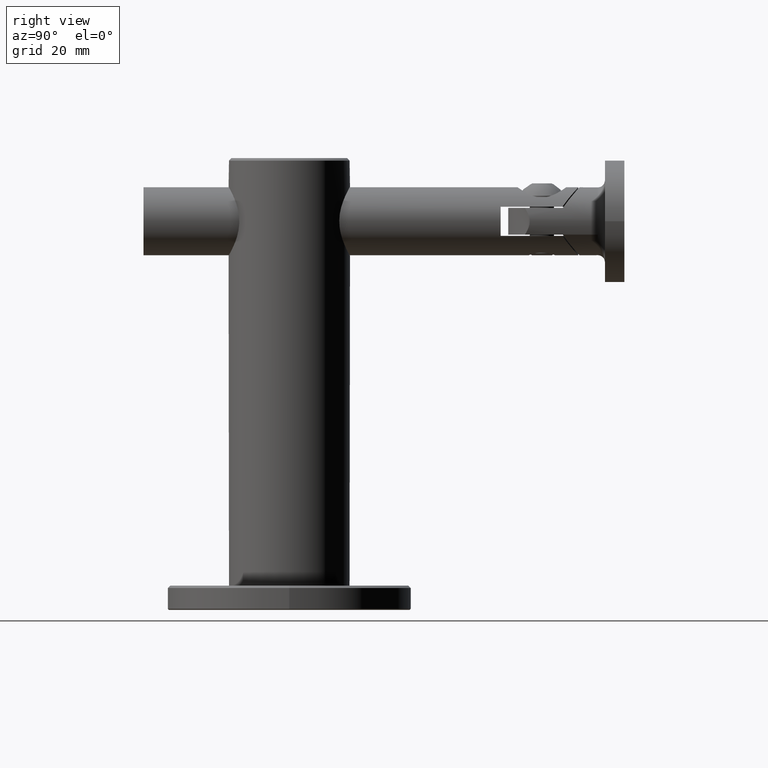
[diagram: clean part render]
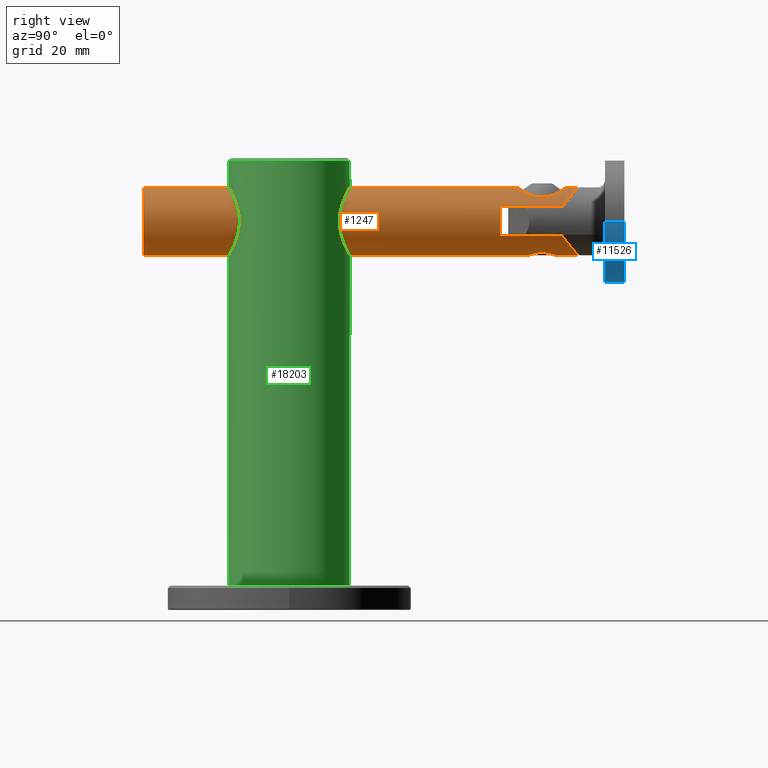
[diagram: same view with three faces highlighted in distinct colors, each labeled with its STEP entity id]
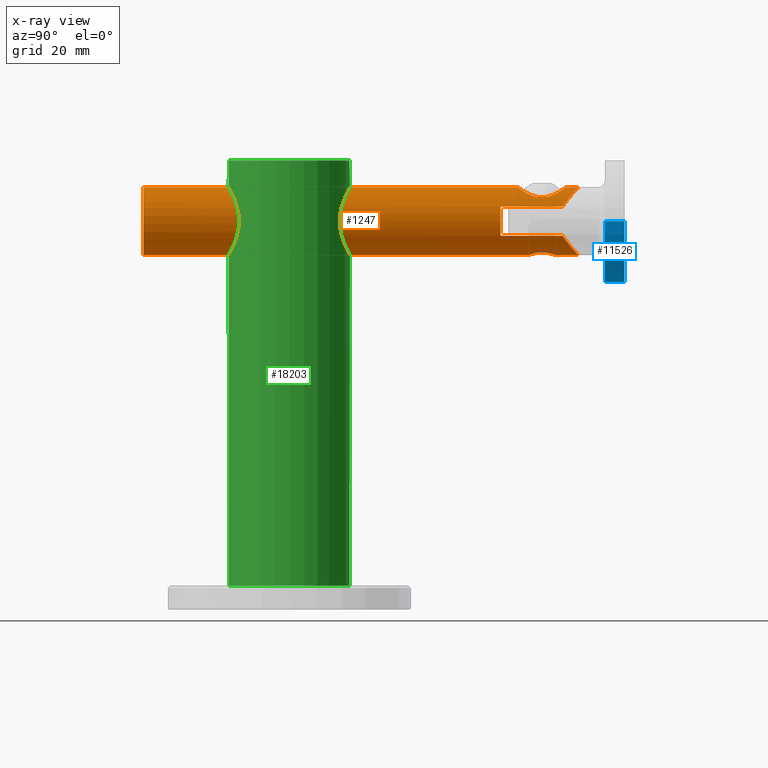
[diagram: x-ray of the same camera — body ghosted, the three highlighted faces saturated]
A machine part, right view with three faces highlighted in distinct colors.
The next image is the same camera in x-ray (body ghosted, the three faces saturated) — at least one of them is partly hidden behind the body in this view.
Their STEP definitions:

[orange] entity #1247 — the highlighted cylindrical surface (bore or boss wall) has radius 7 mm, axis along (-0, -1, -0).
#31 = CARTESIAN_POINT ( 'NONE',  ( -4.452603804045240900, 88.09997191179030600, -5.410397169680552800 ) ) ;
#101 = CARTESIAN_POINT ( 'NONE',  ( 6.324555320336752800, 73.50000000000000000, 2.999999999999998200 ) ) ;
#129 = CARTESIAN_POINT ( 'NONE',  ( 1.222102748769696500, 79.52989224514423900, -6.894547964581978900 ) ) ;
#167 = AXIS2_PLACEMENT_3D ( 'NONE', #6286, #10472, #12046 ) ;
#195 = CARTESIAN_POINT ( 'NONE',  ( 2.732635484204851500, 82.35844959808001400, -6.444702918742189400 ) ) ;
#258 = CARTESIAN_POINT ( 'NONE',  ( 2.185565648149782700, 83.67862347851638600, -6.650893256325724100 ) ) ;
#324 = CIRCLE ( 'NONE', #14048, 6.999999999999999100 ) ;
#332 = CARTESIAN_POINT ( 'NONE',  ( -2.661148324266164900, 81.28345555786052000, -6.474547421383462600 ) ) ;
#354 = CARTESIAN_POINT ( 'NONE',  ( 1.192239523120524100, 77.13522546663585900, 6.903956519540248100 ) ) ;
#401 = CARTESIAN_POINT ( 'NONE',  ( 2.608172707936179600, 82.89000651806121300, -6.496375528918295400 ) ) ;
#483 = CARTESIAN_POINT ( 'NONE',  ( -2.266863554783705500, 77.53430748583549800, 6.628038431484470500 ) ) ;
#596 = CARTESIAN_POINT ( 'NONE',  ( 0.3672442640980363400, 84.75000000000002800, -6.999999999999999100 ) ) ;
#640 = CARTESIAN_POINT ( 'NONE',  ( 1.784310280726326500, 89.29972510605350100, 6.777762685940048800 ) ) ;
#653 = LINE ( 'NONE', #15631, #7934 ) ;
#716 = CARTESIAN_POINT ( 'NONE',  ( 0.7270690641455844800, 84.67681216182973000, -6.970356471794839400 ) ) ;
#936 = ORIENTED_EDGE ( 'NONE', *, *, #3905, .T. ) ;
#1001 = CARTESIAN_POINT ( 'NONE',  ( -0.6104354240936427100, 86.97140170716174600, 6.979499931743287500 ) ) ;
#1006 = VERTEX_POINT ( 'NONE', #5853 ) ;
#1131 = CARTESIAN_POINT ( 'NONE',  ( -0.3075841348478602900, 86.99946705965081200, 6.999619328607963100 ) ) ;
#1157 = ORIENTED_EDGE ( 'NONE', *, *, #17116, .T. ) ;
#1197 = CARTESIAN_POINT ( 'NONE',  ( -4.137930488203155100, 84.82054043138333600, 5.648957477449073400 ) ) ;
#1212 = CARTESIAN_POINT ( 'NONE',  ( 3.652800932876794100, 88.59232238610593400, -5.980227722753383500 ) ) ;
#1247 = ADVANCED_FACE ( 'NONE', ( #5082, #4148, #16799, #8594 ), #3902, .T. ) ;
#1446 = VECTOR ( 'NONE', #12143, 1000.000000000000000 ) ;
#1561 = CARTESIAN_POINT ( 'NONE',  ( -4.203674794888591700, 88.26828322984172800, -5.606578853813122300 ) ) ;
#1641 = CARTESIAN_POINT ( 'NONE',  ( 4.914746297437768700, 87.74943899589085600, 4.994348172364280600 ) ) ;
#1727 = CARTESIAN_POINT ( 'NONE',  ( -0.3638283434192142200, 84.73179643663236500, -6.992791983921315500 ) ) ;
#1799 = CARTESIAN_POINT ( 'NONE',  ( -2.749773621201270700, 82.18479643699988900, -6.437293304769149800 ) ) ;
#1863 = CARTESIAN_POINT ( 'NONE',  ( -2.731778752556962300, 82.36440252293115800, -6.445066868859143500 ) ) ;
#1880 = CARTESIAN_POINT ( 'NONE',  ( 1.475203136158573800, 77.21357541974926200, 6.848675093871656300 ) ) ;
#1924 = CARTESIAN_POINT ( 'NONE',  ( -2.608676248056745800, 81.11103648196828400, -6.496184139014581600 ) ) ;
#1950 = CARTESIAN_POINT ( 'NONE',  ( 0.6104354240936427100, 77.02859829283826800, 6.979499931743287500 ) ) ;
#2014 = CARTESIAN_POINT ( 'NONE',  ( -2.988219876973893900, 77.98153769120139600, 6.334694368661176100 ) ) ;
#2076 = CARTESIAN_POINT ( 'NONE',  ( -4.756686990366636900, 80.43325126141081700, 5.137444608518720200 ) ) ;
#2101 = CARTESIAN_POINT ( 'NONE',  ( -2.760645904571037400, 88.99916267250336000, 6.441476410678595800 ) ) ;
#2163 = CARTESIAN_POINT ( 'NONE',  ( 1.433374368311944900, 89.37459550383636000, 6.860942068636460600 ) ) ;
#2339 = CARTESIAN_POINT ( 'NONE',  ( 6.324555320336759000, 86.22911821679221600, 2.999999999999997300 ) ) ;
#2532 = CARTESIAN_POINT ( 'NONE',  ( 2.004173547763659100, 86.58994197997024900, 6.712845311740686300 ) ) ;
#2581 = VERTEX_POINT ( 'NONE', #4831 ) ;
#2595 = CARTESIAN_POINT ( 'NONE',  ( 4.839624708239068000, 83.29077783649673000, 5.058155567299345500 ) ) ;
#2659 = CARTESIAN_POINT ( 'NONE',  ( 1.172527317746819200, 86.86969451860673500, 6.907427810759569000 ) ) ;
#2670 = CARTESIAN_POINT ( 'NONE',  ( 4.462071165065935900, 88.11739680563549400, -5.432700433738454600 ) ) ;
#2748 = CARTESIAN_POINT ( 'NONE',  ( 5.729747912702356900, 86.99779505689156200, -4.068740834130320400 ) ) ;
#2820 = ORIENTED_EDGE ( 'NONE', *, *, #12826, .T. ) ;
#2822 = VERTEX_POINT ( 'NONE', #11822 ) ;
#3175 = CARTESIAN_POINT ( 'NONE',  ( 0.7171364192753255700, 79.33893349190712700, -6.965464464115196800 ) ) ;
#3299 = CARTESIAN_POINT ( 'NONE',  ( 0.1773274584154867500, 79.24977059354976900, -7.000090123899746600 ) ) ;
#3372 = CARTESIAN_POINT ( 'NONE',  ( -0.8955389252712402400, 79.39374477550752800, -6.944489778815494700 ) ) ;
#3389 = EDGE_LOOP ( 'NONE', ( #10233, #5422, #4891, #936 ) ) ;
#3432 = CARTESIAN_POINT ( 'NONE',  ( -1.680462442602407500, 84.18417676817567500, -6.797005821099865000 ) ) ;
#3444 = DIRECTION ( 'NONE',  ( 0.0000000000000000000, 0.0000000000000000000, -1.000000000000000000 ) ) ;
#3491 = CARTESIAN_POINT ( 'NONE',  ( -6.324555320336758200, 92.00000000000000000, -2.999999999999998200 ) ) ;
#3542 = EDGE_CURVE ( 'NONE', #2581, #18243, #4498, .T. ) ;
#3575 = CARTESIAN_POINT ( 'NONE',  ( 4.756956418564139500, 80.43442272277758300, 5.137164048736693200 ) ) ;
#3601 = CARTESIAN_POINT ( 'NONE',  ( -6.043741256792860600, 86.60800346316200700, 3.544871614369401700 ) ) ;
#3900 = ORIENTED_EDGE ( 'NONE', *, *, #15111, .T. ) ;
#3902 = CYLINDRICAL_SURFACE ( 'NONE', #9594, 6.999999999999999100 ) ;
#3905 = EDGE_CURVE ( 'NONE', #2822, #1006, #14947, .T. ) ;
#3949 = EDGE_LOOP ( 'NONE', ( #1157 ) ) ;
#4102 = CARTESIAN_POINT ( 'NONE',  ( 0.7107497837383238700, 89.47555294120456900, -6.972963517925947500 ) ) ;
#4148 = FACE_BOUND ( 'NONE', #3389, .T. ) ;
#4157 = CARTESIAN_POINT ( 'NONE',  ( 1.459497406017922000, 86.79104856068855200, 6.851924628215162900 ) ) ;
#4159 = ORIENTED_EDGE ( 'NONE', *, *, #13608, .T. ) ;
#4170 = CARTESIAN_POINT ( 'NONE',  ( 0.3497671856842480800, 89.50069798612612700, -7.000772770690280000 ) ) ;
#4370 = CARTESIAN_POINT ( 'NONE',  ( 1.933112387591221700, 89.25705866204617700, -6.730080470345492400 ) ) ;
#4498 = B_SPLINE_CURVE_WITH_KNOTS ( 'NONE', 3,
 ( #10513, #16497, #17982, #12025, #9009, #31, #1561, #7454, #17911, #17776, #10101, #16212, #13070, #8550, #8808, #4170, #4102, #14591, #8613, #10299, #4370, #7177, #17570, #19204, #1212, #2670, #5662, #2748, #18539, #9707 ),
 .UNSPECIFIED., .F., .F.,
 ( 4, 2, 2, 2, 2, 2, 2, 2, 2, 2, 2, 2, 2, 2, 4 ),
 ( 0.03923391438674803800, 0.04139493730015400600, 0.04247544875685700000, 0.04355596021356000100, 0.04463647167026299500, 0.04571698312696598900, 0.04679749458366898300, 0.04787800604037198400, 0.04895851749707497800, 0.04949877322542647200, 0.05003902895377797300, 0.05111954041048096000, 0.05220005186718394700, 0.05436107478058993500, 0.05652209769399593000 ),
 .UNSPECIFIED. ) ;
#4600 = VERTEX_POINT ( 'NONE', #15714 ) ;
#4654 = CARTESIAN_POINT ( 'NONE',  ( 3.372654824286463300, 88.73545560400940200, 6.143196644362327600 ) ) ;
#4669 = CARTESIAN_POINT ( 'NONE',  ( 2.183511112423000900, 80.31881467071492900, -6.651562083835068000 ) ) ;
#4727 = CARTESIAN_POINT ( 'NONE',  ( -1.382943896386208000, 84.38370475417657700, -6.863724086274949300 ) ) ;
#4797 = CARTESIAN_POINT ( 'NONE',  ( -0.1843727596880558600, 79.25023391884023700, -6.999908103376206700 ) ) ;
#4817 = CARTESIAN_POINT ( 'NONE',  ( -4.134643339375577000, 79.17479465001653700, 5.651342518334878700 ) ) ;
#4831 = CARTESIAN_POINT ( 'NONE',  ( -6.324555320336758200, 86.22911821679221600, -3.000000000000001800 ) ) ;
#4872 = VERTEX_POINT ( 'NONE', #12642 ) ;
#4877 = CARTESIAN_POINT ( 'NONE',  ( 3.421553473819725100, 78.34342461210407300, 6.111525691552757600 ) ) ;
#4891 = ORIENTED_EDGE ( 'NONE', *, *, #15217, .T. ) ;
#4898 = DIRECTION ( 'NONE',  ( 0.0000000000000000000, 0.0000000000000000000, 1.000000000000000000 ) ) ;
#4917 = CARTESIAN_POINT ( 'NONE',  ( 1.385854863368648000, 84.38192754872775900, -6.863113667763378200 ) ) ;
#4930 = EDGE_CURVE ( 'NONE', #17274, #17274, #324, .T. ) ;
#4938 = CARTESIAN_POINT ( 'NONE',  ( 3.619266846054845400, 78.53930738716287900, 5.995511750858710800 ) ) ;
#4967 = CARTESIAN_POINT ( 'NONE',  ( -5.712705369129201600, 86.99328173882317100, 4.056836268195262100 ) ) ;
#5003 = CARTESIAN_POINT ( 'NONE',  ( -4.421977009742368700, 79.64985529408764400, 5.429462876628999600 ) ) ;
#5021 = EDGE_CURVE ( 'NONE', #8579, #4600, #18641, .T. ) ;
#5064 = CARTESIAN_POINT ( 'NONE',  ( -0.5860100824662596300, 77.02553146570822700, 6.981688295460141800 ) ) ;
#5082 = FACE_BOUND ( 'NONE', #3949, .T. ) ;
#5145 = CARTESIAN_POINT ( 'NONE',  ( -3.657235530305782400, 88.58994445630666800, 5.977508155596614100 ) ) ;
#5215 = ORIENTED_EDGE ( 'NONE', *, *, #4930, .T. ) ;
#5386 = CARTESIAN_POINT ( 'NONE',  ( -4.426164966053143200, 84.34243052053911100, 5.426071599279979700 ) ) ;
#5422 = ORIENTED_EDGE ( 'NONE', *, *, #18343, .T. ) ;
#5500 = ORIENTED_EDGE ( 'NONE', *, *, #3542, .T. ) ;
#5624 = LINE ( 'NONE', #10855, #11478 ) ;
#5662 = CARTESIAN_POINT ( 'NONE',  ( 4.925109422952113300, 87.75938110575464200, -5.012779696973009200 ) ) ;
#5853 = CARTESIAN_POINT ( 'NONE',  ( -4.898979485566356700, 81.00000000000001400, 4.999999999999999100 ) ) ;
#6172 = CARTESIAN_POINT ( 'NONE',  ( 2.381797171614288300, 80.61394548347900000, -6.583163461929014900 ) ) ;
#6220 = CARTESIAN_POINT ( 'NONE',  ( 3.662519443295178000, 88.58706132749280500, 5.974205600433597500 ) ) ;
#6236 = CARTESIAN_POINT ( 'NONE',  ( 1.678690237137759000, 79.81453093522000600, -6.797428388528597800 ) ) ;
#6286 = CARTESIAN_POINT ( 'NONE',  ( 0.0000000000000000000, 73.50000000000000000, 0.0000000000000000000 ) ) ;
#6293 = CARTESIAN_POINT ( 'NONE',  ( -4.898979485566356700, 82.99999999999998600, 4.999999999999999100 ) ) ;
#6299 = CARTESIAN_POINT ( 'NONE',  ( 0.8893418951905537300, 79.39154481682973600, -6.945314806251102100 ) ) ;
#6338 = VERTEX_POINT ( 'NONE', #14224 ) ;
#6346 = CARTESIAN_POINT ( 'NONE',  ( 6.324555320336759000, 86.22911821679221600, 2.999999999999997300 ) ) ;
#6363 = CARTESIAN_POINT ( 'NONE',  ( 2.470457099791763900, 83.22127728002408300, -6.549984855344327200 ) ) ;
#6430 = CARTESIAN_POINT ( 'NONE',  ( -0.8934201700715390700, 84.60705001422599000, -6.944785510654292600 ) ) ;
#6452 = CARTESIAN_POINT ( 'NONE',  ( -4.839624708239068000, 80.70922216350325600, 5.058155567299345500 ) ) ;
#6512 = VERTEX_POINT ( 'NONE', #7455 ) ;
#6574 = CARTESIAN_POINT ( 'NONE',  ( -2.759197394509893500, 77.82053714633072200, 6.438663957947450300 ) ) ;
#6592 = VERTEX_POINT ( 'NONE', #14804 ) ;
#6666 = CARTESIAN_POINT ( 'NONE',  ( -4.465719392932154400, 88.11480147856596500, 5.429664096517385000 ) ) ;
#6837 = EDGE_LOOP ( 'NONE', ( #5500, #18661, #7441, #18666, #13449, #2820, #3900, #4159 ) ) ;
#7177 = CARTESIAN_POINT ( 'NONE',  ( 2.436208839625645200, 89.11537843722753400, -6.571796790168397400 ) ) ;
#7441 = ORIENTED_EDGE ( 'NONE', *, *, #15977, .T. ) ;
#7454 = CARTESIAN_POINT ( 'NONE',  ( -3.668769152028241700, 88.58366892340734500, -5.970321694375610600 ) ) ;
#7455 = CARTESIAN_POINT ( 'NONE',  ( -6.324555320336756400, 73.50000000000000000, -3.000000000000000000 ) ) ;
#7520 = EDGE_CURVE ( 'NONE', #1006, #8722, #15305, .T. ) ;
#7682 = CARTESIAN_POINT ( 'NONE',  ( -2.732024789745296700, 81.63780269255168800, -6.444960454782098200 ) ) ;
#7742 = CARTESIAN_POINT ( 'NONE',  ( 2.468051694380037500, 80.77378078093845200, -6.550897895195269900 ) ) ;
#7810 = CARTESIAN_POINT ( 'NONE',  ( -2.399702794726680000, 83.38986420423108800, -6.577483290828721100 ) ) ;
#7858 = CARTESIAN_POINT ( 'NONE',  ( 6.060285792426122400, 86.60226917371140600, 3.557129082916704800 ) ) ;
#7875 = CARTESIAN_POINT ( 'NONE',  ( 2.072909421294454500, 83.81586578501608600, -6.687320039122627500 ) ) ;
#7895 = CARTESIAN_POINT ( 'NONE',  ( -3.614905331433776700, 78.53470914144381300, 5.998164343327515800 ) ) ;
#7920 = CARTESIAN_POINT ( 'NONE',  ( -6.324555320336759900, 86.22911821679221600, 2.999999999999997300 ) ) ;
#7934 = VECTOR ( 'NONE', #12667, 1000.000000000000000 ) ;
#7938 = CARTESIAN_POINT ( 'NONE',  ( -0.3660169853830148600, 79.26836406271837600, -6.992726396043567900 ) ) ;
#7958 = CARTESIAN_POINT ( 'NONE',  ( -4.548511329816598400, 79.90433365806386200, 5.322635898918067100 ) ) ;
#8013 = CARTESIAN_POINT ( 'NONE',  ( -4.898979485566356700, 92.00000000000000000, 4.999999999999999100 ) ) ;
#8045 = CARTESIAN_POINT ( 'NONE',  ( -0.7158752425265080300, 89.46899521724175500, 6.965660251015655100 ) ) ;
#8084 = CARTESIAN_POINT ( 'NONE',  ( -4.898979485566356700, 81.00000000000001400, 4.999999999999999100 ) ) ;
#8091 = CARTESIAN_POINT ( 'NONE',  ( 6.324555320336758200, 86.22911821679221600, -3.000000000000001800 ) ) ;
#8162 = CARTESIAN_POINT ( 'NONE',  ( -0.3541687347409526700, 89.49402537663688400, 6.993387205265690000 ) ) ;
#8217 = VECTOR ( 'NONE', #10039, 1000.000000000000000 ) ;
#8407 = CARTESIAN_POINT ( 'NONE',  ( 4.134643339375577000, 84.82520534998342000, 5.651342518334878700 ) ) ;
#8536 = CARTESIAN_POINT ( 'NONE',  ( 4.898979485566356700, 82.99999999999998600, 4.999999999999999100 ) ) ;
#8550 = CARTESIAN_POINT ( 'NONE',  ( -0.7389411897558341200, 89.47293901850568400, -6.970069743419795600 ) ) ;
#8555 = CARTESIAN_POINT ( 'NONE',  ( 6.324555320336758200, 92.00000000000000000, -2.999999999999998200 ) ) ;
#8579 = VERTEX_POINT ( 'NONE', #2339 ) ;
#8594 = FACE_OUTER_BOUND ( 'NONE', #15035, .T. ) ;
#8613 = CARTESIAN_POINT ( 'NONE',  ( 1.414623252081837800, 89.37185099101115800, -6.857873205915090000 ) ) ;
#8663 = CARTESIAN_POINT ( 'NONE',  ( 3.973478704353192700, 85.04749869166062100, 5.766886771113650700 ) ) ;
#8722 = VERTEX_POINT ( 'NONE', #6293 ) ;
#8808 = CARTESIAN_POINT ( 'NONE',  ( -0.3800433329546377700, 89.49927244464906600, -6.999194491946672000 ) ) ;
#9009 = CARTESIAN_POINT ( 'NONE',  ( -4.917961319889351500, 87.74678917191496900, -4.991165657995903600 ) ) ;
#9098 = CARTESIAN_POINT ( 'NONE',  ( 0.0000000000000000000, 0.0000000000000000000, 0.0000000000000000000 ) ) ;
#9173 = CARTESIAN_POINT ( 'NONE',  ( 2.750190343333264400, 82.17835287948736300, -6.437115279298305700 ) ) ;
#9241 = CARTESIAN_POINT ( 'NONE',  ( -1.225674639950458300, 84.46832555671827000, -6.893907967638291700 ) ) ;
#9357 = CARTESIAN_POINT ( 'NONE',  ( 2.070740906206229000, 80.18153847660039400, -6.688013981450927400 ) ) ;
#9404 = CARTESIAN_POINT ( 'NONE',  ( -2.442152771851341200, 89.11344847989907700, 6.569635425306681300 ) ) ;
#9435 = DIRECTION ( 'NONE',  ( -0.0000000000000000000, -1.000000000000000000, -0.0000000000000000000 ) ) ;
#9445 = CARTESIAN_POINT ( 'NONE',  ( 2.780641105782204500, 77.80734904778249500, 6.441982059250345400 ) ) ;
#9490 = CARTESIAN_POINT ( 'NONE',  ( 1.228763892797353000, 84.46688112587470700, -6.893385524380597900 ) ) ;
#9510 = CARTESIAN_POINT ( 'NONE',  ( -1.172527317746819200, 77.13030548139327900, 6.907427810759569000 ) ) ;
#9567 = DIRECTION ( 'NONE',  ( 0.0000000000000000000, 1.000000000000000000, 0.0000000000000000000 ) ) ;
#9594 = AXIS2_PLACEMENT_3D ( 'NONE', #12396, #9435, #3444 ) ;
#9620 = VECTOR ( 'NONE', #14439, 1000.000000000000000 ) ;
#9707 = CARTESIAN_POINT ( 'NONE',  ( 6.324555320336758200, 86.22911821679221600, -3.000000000000001800 ) ) ;
#9897 = CARTESIAN_POINT ( 'NONE',  ( 2.759197394509893500, 86.17946285366929300, 6.438663957947450300 ) ) ;
#9962 = CARTESIAN_POINT ( 'NONE',  ( -1.475203136158573800, 86.78642458025078100, 6.848675093871656300 ) ) ;
#10039 = DIRECTION ( 'NONE',  ( -0.0000000000000000000, -1.000000000000000000, -0.0000000000000000000 ) ) ;
#10101 = CARTESIAN_POINT ( 'NONE',  ( -2.458491548171999800, 89.10779717274523600, -6.563299935152077300 ) ) ;
#10233 = ORIENTED_EDGE ( 'NONE', *, *, #7520, .T. ) ;
#10299 = CARTESIAN_POINT ( 'NONE',  ( 1.760796681566904300, 89.29939510958931200, -6.777254525242627300 ) ) ;
#10472 = DIRECTION ( 'NONE',  ( -0.0000000000000000000, -1.000000000000000000, -0.0000000000000000000 ) ) ;
#10513 = CARTESIAN_POINT ( 'NONE',  ( -6.324555320336758200, 86.22911821679221600, -3.000000000000001800 ) ) ;
#10612 = CARTESIAN_POINT ( 'NONE',  ( -2.750222174978944200, 81.82200371004913100, -6.437101680704922800 ) ) ;
#10675 = CARTESIAN_POINT ( 'NONE',  ( 2.606819564357611100, 81.10591695116706000, -6.496924977117127600 ) ) ;
#10740 = CARTESIAN_POINT ( 'NONE',  ( -1.225914254322210800, 79.53186497473907900, -6.893842360817259900 ) ) ;
#10756 = CARTESIAN_POINT ( 'NONE',  ( 3.976657288431762800, 78.95669872114841300, 5.764672624529448600 ) ) ;
#10798 = CARTESIAN_POINT ( 'NONE',  ( -0.7237645451574156200, 79.34068275480149200, -6.964794021842021000 ) ) ;
#10821 = CARTESIAN_POINT ( 'NONE',  ( -1.459497406017922000, 77.20895143931147700, 6.851924628215162900 ) ) ;
#10855 = CARTESIAN_POINT ( 'NONE',  ( 4.898979485566356700, 92.00000000000000000, 4.999999999999999100 ) ) ;
#10868 = CARTESIAN_POINT ( 'NONE',  ( -2.710505431213761100E-017, 84.75000000000001400, -6.999999999999999100 ) ) ;
#10889 = CARTESIAN_POINT ( 'NONE',  ( 2.299731958036056700, 77.52165531221291400, 6.635776688420710600 ) ) ;
#10956 = CARTESIAN_POINT ( 'NONE',  ( 4.137930488203155100, 79.17945956861666400, 5.648957477449073400 ) ) ;
#11034 = CARTESIAN_POINT ( 'NONE',  ( -1.424298548345202900, 89.37633801090135000, 6.862877893622210100 ) ) ;
#11104 = CARTESIAN_POINT ( 'NONE',  ( -0.8945440000771623900, 89.45026496198413200, 6.944906109251775200 ) ) ;
#11158 = VERTEX_POINT ( 'NONE', #101 ) ;
#11192 = CARTESIAN_POINT ( 'NONE',  ( 0.0000000000000000000, 0.0000000000000000000, 6.999999999999999100 ) ) ;
#11473 = CARTESIAN_POINT ( 'NONE',  ( -3.976657288431762800, 85.04330127885158700, 5.764672624529448600 ) ) ;
#11478 = VECTOR ( 'NONE', #18505, 1000.000000000000000 ) ;
#11544 = CARTESIAN_POINT ( 'NONE',  ( 3.614905331433776700, 85.46529085855618700, 5.998164343327515800 ) ) ;
#11611 = CARTESIAN_POINT ( 'NONE',  ( 0.2900063760935456800, 87.00051749145713100, 7.000369636473303500 ) ) ;
#11677 = CARTESIAN_POINT ( 'NONE',  ( -3.619266846054845400, 85.46069261283707900, 5.995511750858710800 ) ) ;
#11822 = CARTESIAN_POINT ( 'NONE',  ( 4.898979485566356700, 81.00000000000001400, 4.999999999999999100 ) ) ;
#12025 = CARTESIAN_POINT ( 'NONE',  ( -5.135444140045439800, 87.56080041834199800, -4.766783065597560500 ) ) ;
#12046 = DIRECTION ( 'NONE',  ( 0.0000000000000000000, 0.0000000000000000000, -1.000000000000000000 ) ) ;
#12105 = CARTESIAN_POINT ( 'NONE',  ( 4.448706863809171400, 88.10271647986050400, 5.413617281898848600 ) ) ;
#12122 = CARTESIAN_POINT ( 'NONE',  ( -2.606395045487770500, 82.89507199105003100, -6.497089336995014000 ) ) ;
#12143 = DIRECTION ( 'NONE',  ( -0.0000000000000000000, -1.000000000000000000, -0.0000000000000000000 ) ) ;
#12184 = CARTESIAN_POINT ( 'NONE',  ( 2.661337149544327200, 82.71628721917572600, -6.474471173527214200 ) ) ;
#12226 = LINE ( 'NONE', #18165, #1446 ) ;
#12255 = CARTESIAN_POINT ( 'NONE',  ( -0.1836221320490178400, 84.75000000000001400, -7.000000000000000000 ) ) ;
#12322 = CARTESIAN_POINT ( 'NONE',  ( -1.819848553133532200, 79.93061821121932600, -6.760569733628367200 ) ) ;
#12387 = CARTESIAN_POINT ( 'NONE',  ( -2.195948279647488300, 83.69298911763372900, -6.651765806844050400 ) ) ;
#12396 = CARTESIAN_POINT ( 'NONE',  ( 0.0000000000000000000, 92.00000000000000000, 0.0000000000000000000 ) ) ;
#12404 = CARTESIAN_POINT ( 'NONE',  ( 0.3075841348478602900, 77.00053294034920300, 6.999619328607963100 ) ) ;
#12439 = VERTEX_POINT ( 'NONE', #13773 ) ;
#12496 = CARTESIAN_POINT ( 'NONE',  ( -5.529349794834750800, 87.18737894610852400, 4.303714351459682100 ) ) ;
#12558 = CARTESIAN_POINT ( 'NONE',  ( -3.367225610241182400, 88.73808392569647200, 6.146183844426517800 ) ) ;
#12624 = CARTESIAN_POINT ( 'NONE',  ( -4.927650716901704100, 87.75715858298261200, 5.010082225133492000 ) ) ;
#12636 = CARTESIAN_POINT ( 'NONE',  ( -2.710505431213761100E-017, 84.75000000000001400, -6.999999999999999100 ) ) ;
#12642 = CARTESIAN_POINT ( 'NONE',  ( 0.0000000000000000000, 84.75000000000000000, -6.999999999999999100 ) ) ;
#12667 = DIRECTION ( 'NONE',  ( 0.0000000000000000000, 1.000000000000000000, 0.0000000000000000000 ) ) ;
#12826 = EDGE_CURVE ( 'NONE', #4600, #12439, #12226, .T. ) ;
#12993 = CARTESIAN_POINT ( 'NONE',  ( 2.988219876973893900, 86.01846230879861800, 6.334694368661176100 ) ) ;
#13060 = CARTESIAN_POINT ( 'NONE',  ( 2.266863554783705500, 86.46569251416451600, 6.628038431484470500 ) ) ;
#13070 = CARTESIAN_POINT ( 'NONE',  ( -1.445460648942785700, 89.37236608133154900, -6.858465558885002100 ) ) ;
#13449 = ORIENTED_EDGE ( 'NONE', *, *, #5021, .T. ) ;
#13608 = EDGE_CURVE ( 'NONE', #6512, #2581, #13858, .T. ) ;
#13633 = CARTESIAN_POINT ( 'NONE',  ( 4.199224853540028100, 88.27119367124032600, 5.609963623605692000 ) ) ;
#13647 = CARTESIAN_POINT ( 'NONE',  ( 1.816577320195462000, 79.92760596109909000, -6.761475116900923500 ) ) ;
#13712 = CARTESIAN_POINT ( 'NONE',  ( -0.7177927998739558300, 84.66079994195757800, -6.965363184380154700 ) ) ;
#13721 = CARTESIAN_POINT ( 'NONE',  ( 0.0000000000000000000, 73.50000000000000000, 0.0000000000000000000 ) ) ;
#13773 = CARTESIAN_POINT ( 'NONE',  ( -6.324555320336757300, 73.50000000000000000, 2.999999999999998200 ) ) ;
#13783 = CARTESIAN_POINT ( 'NONE',  ( 2.731176873975664800, 81.63148220767590100, -6.445322398299544500 ) ) ;
#13790 = DIRECTION ( 'NONE',  ( 0.0000000000000000000, 0.0000000000000000000, -1.000000000000000000 ) ) ;
#13842 = CARTESIAN_POINT ( 'NONE',  ( 0.3605394467173384500, 79.26768030572824800, -6.992995863867172100 ) ) ;
#13851 = DIRECTION ( 'NONE',  ( -0.0000000000000000000, -1.000000000000000000, -0.0000000000000000000 ) ) ;
#13858 = LINE ( 'NONE', #3491, #9620 ) ;
#13862 = CARTESIAN_POINT ( 'NONE',  ( -2.004173547763659100, 77.41005802002975100, 6.712845311740686300 ) ) ;
#13889 = DIRECTION ( 'NONE',  ( 0.0000000000000000000, 1.000000000000000000, 0.0000000000000000000 ) ) ;
#13911 = CARTESIAN_POINT ( 'NONE',  ( -2.071457664861658700, 80.18251468045402000, -6.687766071139152200 ) ) ;
#13931 = CARTESIAN_POINT ( 'NONE',  ( -3.415837379854716400, 78.33809443666768900, 6.114725322684308600 ) ) ;
#14048 = AXIS2_PLACEMENT_3D ( 'NONE', #9098, #13889, #4898 ) ;
#14056 = CARTESIAN_POINT ( 'NONE',  ( 4.550541201749037900, 79.90900948106927600, 5.320870568143504000 ) ) ;
#14224 = CARTESIAN_POINT ( 'NONE',  ( 4.898979485566356700, 82.99999999999998600, 4.999999999999999100 ) ) ;
#14309 = CIRCLE ( 'NONE', #167, 6.999999999999999100 ) ;
#14320 = CARTESIAN_POINT ( 'NONE',  ( -4.839633333549911300, 83.29073558127586800, 5.058147116255173400 ) ) ;
#14332 = AXIS2_PLACEMENT_3D ( 'NONE', #13721, #13851, #13790 ) ;
#14379 = EDGE_CURVE ( 'NONE', #18243, #6592, #17805, .T. ) ;
#14396 = CARTESIAN_POINT ( 'NONE',  ( -4.756956418564139500, 83.56557727722245900, 5.137164048736693200 ) ) ;
#14439 = DIRECTION ( 'NONE',  ( 0.0000000000000000000, 1.000000000000000000, 0.0000000000000000000 ) ) ;
#14574 = CARTESIAN_POINT ( 'NONE',  ( 4.421977009742368700, 84.35014470591239900, 5.429462876628999600 ) ) ;
#14591 = CARTESIAN_POINT ( 'NONE',  ( 1.239901295625974700, 89.40224497469303300, -6.891624710215854300 ) ) ;
#14652 = CARTESIAN_POINT ( 'NONE',  ( -3.421553473819725100, 85.65657538789591300, 6.111525691552757600 ) ) ;
#14804 = CARTESIAN_POINT ( 'NONE',  ( 6.324555320336756400, 73.50000000000000000, -3.000000000000000000 ) ) ;
#14947 = B_SPLINE_CURVE_WITH_KNOTS ( 'NONE', 3,
 ( #18473, #17052, #3575, #14056, #16802, #10956, #10756, #4938, #4877, #9445, #10889, #1880, #354, #1950, #12404, #18350, #5064, #9510, #10821, #13862, #483, #6574, #2014, #13931, #7895, #15370, #4817, #5003, #7958, #2076, #6452, #8084 ),
 .UNSPECIFIED., .F., .F.,
 ( 4, 2, 2, 2, 2, 2, 2, 2, 2, 2, 2, 2, 2, 2, 2, 4 ),
 ( 0.0000000000000000000, 0.0008903713401082948700, 0.001780742680216589700, 0.002671114020324884600, 0.003561485360433179500, 0.005342228040649792600, 0.006232599380758099700, 0.007122970720866405800, 0.008013342060974712800, 0.008903713401083018100, 0.009794084741191323400, 0.01068445608129962900, 0.01157482742140793600, 0.01246519876151624300, 0.01335557010162454600, 0.01424594144173285300 ),
 .UNSPECIFIED. ) ;
#15035 = EDGE_LOOP ( 'NONE', ( #5215 ) ) ;
#15111 = EDGE_CURVE ( 'NONE', #12439, #6512, #14309, .T. ) ;
#15159 = CARTESIAN_POINT ( 'NONE',  ( -2.384457372796943400, 80.61847925741047000, -6.582199679941025400 ) ) ;
#15217 = EDGE_CURVE ( 'NONE', #6338, #2822, #5624, .T. ) ;
#15220 = CARTESIAN_POINT ( 'NONE',  ( -2.660244663762090200, 82.72007130241775000, -6.474920881826497200 ) ) ;
#15283 = CARTESIAN_POINT ( 'NONE',  ( -2.469199969938539900, 80.77586789437484100, -6.550469574283626500 ) ) ;
#15305 = LINE ( 'NONE', #8013, #15985 ) ;
#15349 = CARTESIAN_POINT ( 'NONE',  ( 2.659500794431466400, 81.27737422920485200, -6.475226904084494500 ) ) ;
#15370 = CARTESIAN_POINT ( 'NONE',  ( -3.973478704353192700, 78.95250130833937900, 5.766886771113650700 ) ) ;
#15398 = CARTESIAN_POINT ( 'NONE',  ( 0.3720041140973574500, 89.49952115337065100, 6.999469848273423400 ) ) ;
#15567 = CARTESIAN_POINT ( 'NONE',  ( -4.550541201749037900, 84.09099051893072400, 5.320870568143504000 ) ) ;
#15583 = CARTESIAN_POINT ( 'NONE',  ( 2.766659901701651300, 88.99686025446094100, 6.438886438150894300 ) ) ;
#15631 = CARTESIAN_POINT ( 'NONE',  ( 6.324555320336757300, 92.00000000000000000, 3.000000000000000000 ) ) ;
#15646 = CARTESIAN_POINT ( 'NONE',  ( -6.192264615893467500, 86.41591388462727300, 3.278893292872632000 ) ) ;
#15714 = CARTESIAN_POINT ( 'NONE',  ( -6.324555320336759900, 86.22911821679221600, 2.999999999999997300 ) ) ;
#15977 = EDGE_CURVE ( 'NONE', #6592, #11158, #18744, .T. ) ;
#15985 = VECTOR ( 'NONE', #9567, 1000.000000000000000 ) ;
#16007 = CARTESIAN_POINT ( 'NONE',  ( 4.756686990366636900, 83.56674873858914100, 5.137444608518720200 ) ) ;
#16042 = B_SPLINE_CURVE_WITH_KNOTS ( 'NONE', 3,
 ( #18675, #14320, #14396, #15567, #5386, #1197, #11473, #11677, #14652, #18931, #16071, #9962, #17626, #1001, #1131, #11611, #17504, #2659, #4157, #2532, #13060, #9897, #12993, #17369, #11544, #8663, #8407, #14574, #16137, #16007, #2595, #8536 ),
 .UNSPECIFIED., .F., .F.,
 ( 4, 2, 2, 2, 2, 2, 2, 2, 2, 2, 2, 2, 2, 2, 2, 4 ),
 ( 0.0000000000000000000, 0.0008903713401082948700, 0.001780742680216589700, 0.002671114020324884600, 0.003561485360433179500, 0.005342228040649792600, 0.006232599380758099700, 0.007122970720866405800, 0.008013342060974712800, 0.008903713401083018100, 0.009794084741191323400, 0.01068445608129962900, 0.01157482742140793600, 0.01246519876151624300, 0.01335557010162454600, 0.01424594144173285300 ),
 .UNSPECIFIED. ) ;
#16071 = CARTESIAN_POINT ( 'NONE',  ( -2.299731958036056700, 86.47834468778707200, 6.635776688420710600 ) ) ;
#16137 = CARTESIAN_POINT ( 'NONE',  ( 4.548511329816598400, 84.09566634193613800, 5.322635898918067100 ) ) ;
#16212 = CARTESIAN_POINT ( 'NONE',  ( -1.795446388815784300, 89.29703466220864500, -6.774766342545606600 ) ) ;
#16497 = CARTESIAN_POINT ( 'NONE',  ( -6.060553476826094700, 86.60189120092432800, -3.556564754651358100 ) ) ;
#16636 = B_SPLINE_CURVE_WITH_KNOTS ( 'NONE', 3,
 ( #10868, #12255, #1727, #13712, #6430, #9241, #4727, #3432, #18268, #12387, #7810, #12122, #15220, #1863, #1799, #10612, #7682, #332, #1924, #15283, #15159, #18141, #13911, #12322, #16847, #16910, #10740, #3372, #10798, #7938, #4797, #3299, #13842, #3175, #6299, #129, #18394, #6236, #13647, #9357, #4669, #6172, #7742, #10675, #15349, #13783, #16723, #9173, #195, #12184, #401, #6363, #18209, #258, #7875, #18329, #16660, #4917, #9490, #716, #596, #12636 ),
 .UNSPECIFIED., .T., .F.,
 ( 4, 2, 2, 2, 2, 2, 2, 2, 2, 2, 2, 2, 2, 2, 2, 2, 2, 2, 2, 2, 2, 2, 2, 2, 2, 2, 2, 2, 2, 2, 4 ),
 ( 0.0000000000000000000, 0.0005426679904109459000, 0.001085335980821891800, 0.001628003971232837700, 0.002170671961643783600, 0.003256007942465674500, 0.003798675932876619800, 0.004341343923287565400, 0.004884011913698511600, 0.005426679904109456800, 0.005969347894520402900, 0.006512015884931349000, 0.007054683875342295100, 0.007597351865753240400, 0.008140019856164186500, 0.008682687846575132600, 0.009225355836986078700, 0.009768023827397024800, 0.01031069181780797100, 0.01085335980821891500, 0.01139602779862986100, 0.01193869578904080800, 0.01248136377945175400, 0.01302403176986270000, 0.01356669976027364600, 0.01410936775068459200, 0.01465203574109553800, 0.01519470373150648200, 0.01573737172191742900, 0.01628003971232837600, 0.01736537569315026900 ),
 .UNSPECIFIED. ) ;
#16660 = CARTESIAN_POINT ( 'NONE',  ( 1.681304899442013900, 84.18343453870795700, -6.796773996101039800 ) ) ;
#16723 = CARTESIAN_POINT ( 'NONE',  ( 2.749806574986836300, 81.81582488131091700, -6.437279226792822100 ) ) ;
#16799 = FACE_OUTER_BOUND ( 'NONE', #6837, .T. ) ;
#16802 = CARTESIAN_POINT ( 'NONE',  ( 4.426164966053143200, 79.65756947946091800, 5.426071599279979700 ) ) ;
#16847 = CARTESIAN_POINT ( 'NONE',  ( -1.682963870502190100, 79.81777303405209500, -6.796379002353479100 ) ) ;
#16892 = CARTESIAN_POINT ( 'NONE',  ( 2.449703906055181100, 89.11077870388302800, 6.566641529540416600 ) ) ;
#16910 = CARTESIAN_POINT ( 'NONE',  ( -1.386160257658444400, 79.61818521702164700, -6.863067439063616600 ) ) ;
#17052 = CARTESIAN_POINT ( 'NONE',  ( 4.839633333549911300, 80.70926441872416000, 5.058147116255173400 ) ) ;
#17116 = EDGE_CURVE ( 'NONE', #4872, #4872, #16636, .T. ) ;
#17274 = VERTEX_POINT ( 'NONE', #11192 ) ;
#17369 = CARTESIAN_POINT ( 'NONE',  ( 3.415837379854716400, 85.66190556333231100, 6.114725322684308600 ) ) ;
#17504 = CARTESIAN_POINT ( 'NONE',  ( 0.5860100824662596300, 86.97446853429174500, 6.981688295460141800 ) ) ;
#17570 = CARTESIAN_POINT ( 'NONE',  ( 2.754659698250624200, 89.00145416269265300, -6.444054170888958500 ) ) ;
#17626 = CARTESIAN_POINT ( 'NONE',  ( -1.192239523120524100, 86.86477453336415500, 6.903956519540248100 ) ) ;
#17776 = CARTESIAN_POINT ( 'NONE',  ( -2.774749103926561000, 88.99375527870925900, -6.435393379818186200 ) ) ;
#17805 = LINE ( 'NONE', #8555, #8217 ) ;
#17911 = CARTESIAN_POINT ( 'NONE',  ( -3.379994369966394800, 88.73189524316750000, -6.139149664387119300 ) ) ;
#17982 = CARTESIAN_POINT ( 'NONE',  ( -5.734102128558198800, 86.99264483334378900, -4.062031759999328500 ) ) ;
#18056 = CARTESIAN_POINT ( 'NONE',  ( 5.733142513008967700, 86.99391162108304300, 4.063715644963389600 ) ) ;
#18141 = CARTESIAN_POINT ( 'NONE',  ( -2.186283639877384400, 80.32238253141682100, -6.650650602407702100 ) ) ;
#18165 = CARTESIAN_POINT ( 'NONE',  ( -6.324555320336757300, 92.00000000000000000, 3.000000000000000000 ) ) ;
#18209 = CARTESIAN_POINT ( 'NONE',  ( 2.384541006121612100, 83.38146233214060000, -6.582176121886735000 ) ) ;
#18238 = EDGE_CURVE ( 'NONE', #11158, #8579, #653, .T. ) ;
#18243 = VERTEX_POINT ( 'NONE', #8091 ) ;
#18268 = CARTESIAN_POINT ( 'NONE',  ( -1.819711518684171700, 84.06945046778039900, -6.760598663414708800 ) ) ;
#18312 = CARTESIAN_POINT ( 'NONE',  ( 5.131966938833488500, 87.56392065475355900, 4.770596641733377800 ) ) ;
#18329 = CARTESIAN_POINT ( 'NONE',  ( 1.820941083946231900, 84.06845246183714000, -6.760279309565477800 ) ) ;
#18343 = EDGE_CURVE ( 'NONE', #8722, #6338, #16042, .T. ) ;
#18350 = CARTESIAN_POINT ( 'NONE',  ( -0.2900063760935456800, 76.99948250854288300, 7.000369636473303500 ) ) ;
#18378 = CARTESIAN_POINT ( 'NONE',  ( 0.7289414277629956400, 89.47383732815151800, 6.971063946329146600 ) ) ;
#18394 = CARTESIAN_POINT ( 'NONE',  ( 1.382498685967689300, 79.61610123355254100, -6.863798583345361400 ) ) ;
#18473 = CARTESIAN_POINT ( 'NONE',  ( 4.898979485566356700, 81.00000000000001400, 4.999999999999999100 ) ) ;
#18505 = DIRECTION ( 'NONE',  ( -0.0000000000000000000, -1.000000000000000000, -0.0000000000000000000 ) ) ;
#18539 = CARTESIAN_POINT ( 'NONE',  ( 6.059395603615740800, 86.60352612834042000, -3.559005765708956700 ) ) ;
#18568 = CARTESIAN_POINT ( 'NONE',  ( -1.769915728430260700, 89.30326962258362800, 6.781712032869050300 ) ) ;
#18632 = CARTESIAN_POINT ( 'NONE',  ( -0.1708320720194732300, 89.50022952531284700, 7.000254117360194400 ) ) ;
#18641 = B_SPLINE_CURVE_WITH_KNOTS ( 'NONE', 3,
 ( #6346, #7858, #18056, #18312, #1641, #12105, #13633, #6220, #4654, #15583, #16892, #640, #2163, #18378, #15398, #18632, #8162, #8045, #11104, #11034, #18568, #9404, #2101, #12558, #5145, #6666, #12624, #12496, #4967, #3601, #15646, #7920 ),
 .UNSPECIFIED., .F., .F.,
 ( 4, 2, 2, 2, 2, 2, 2, 2, 2, 2, 2, 2, 2, 2, 2, 4 ),
 ( 0.01528008297406659900, 0.01744185764059446100, 0.01852274497385838400, 0.01960363230712230300, 0.02068451964038622200, 0.02176540697365014100, 0.02284629430691406300, 0.02392718164017798600, 0.02446762530680994500, 0.02500806897344190500, 0.02608895630670581700, 0.02716984363996973600, 0.02825073097323365200, 0.03041250563976150000, 0.03149339297302543300, 0.03257428030628935900 ),
 .UNSPECIFIED. ) ;
#18661 = ORIENTED_EDGE ( 'NONE', *, *, #14379, .T. ) ;
#18666 = ORIENTED_EDGE ( 'NONE', *, *, #18238, .T. ) ;
#18675 = CARTESIAN_POINT ( 'NONE',  ( -4.898979485566356700, 82.99999999999998600, 4.999999999999999100 ) ) ;
#18744 = CIRCLE ( 'NONE', #14332, 6.999999999999999100 ) ;
#18931 = CARTESIAN_POINT ( 'NONE',  ( -2.780641105782204500, 86.19265095221747700, 6.441982059250345400 ) ) ;
#19204 = CARTESIAN_POINT ( 'NONE',  ( 3.362034542776480200, 88.74059806168091300, -6.149041221499118100 ) ) ;

[blue] entity #11526 — the highlighted cylindrical surface (partial cylindrical patch) has radius 12.5 mm, axis along (0, 1, 0).
#631 = CIRCLE ( 'NONE', #17145, 12.50000000000000000 ) ;
#1210 = LINE ( 'NONE', #15294, #18537 ) ;
#1511 = ORIENTED_EDGE ( 'NONE', *, *, #5933, .F. ) ;
#1513 = CARTESIAN_POINT ( 'NONE',  ( 0.0000000000000000000, -3.469446951953614200E-015, -32.50000000000000000 ) ) ;
#1773 = EDGE_CURVE ( 'NONE', #12525, #5236, #631, .T. ) ;
#1955 = EDGE_CURVE ( 'NONE', #16187, #5236, #11136, .T. ) ;
#2343 = DIRECTION ( 'NONE',  ( 0.0000000000000000000, 0.0000000000000000000, 1.000000000000000000 ) ) ;
#3032 = DIRECTION ( 'NONE',  ( -0.0000000000000000000, -1.000000000000000000, -0.0000000000000000000 ) ) ;
#3302 = CARTESIAN_POINT ( 'NONE',  ( 0.0000000000000000000, 3.999999999999996400, -20.00000000000000400 ) ) ;
#4190 = CARTESIAN_POINT ( 'NONE',  ( -12.50000000000000000, -3.370833141065685400E-015, -20.00000000000000400 ) ) ;
#4465 = CARTESIAN_POINT ( 'NONE',  ( -12.50000000000000000, 3.999999999999996400, -20.00000000000000400 ) ) ;
#4684 = AXIS2_PLACEMENT_3D ( 'NONE', #11479, #18935, #2343 ) ;
#4906 = VERTEX_POINT ( 'NONE', #4465 ) ;
#5236 = VERTEX_POINT ( 'NONE', #10037 ) ;
#5432 = CARTESIAN_POINT ( 'NONE',  ( 0.0000000000000000000, 3.999999999999996400, -32.50000000000000000 ) ) ;
#5683 = FACE_OUTER_BOUND ( 'NONE', #7791, .T. ) ;
#5933 = EDGE_CURVE ( 'NONE', #16187, #4906, #14157, .T. ) ;
#6496 = DIRECTION ( 'NONE',  ( -0.0000000000000000000, 1.000000000000000000, -0.0000000000000000000 ) ) ;
#7392 = ORIENTED_EDGE ( 'NONE', *, *, #1773, .F. ) ;
#7791 = EDGE_LOOP ( 'NONE', ( #1511, #9720, #7392, #12930 ) ) ;
#7948 = DIRECTION ( 'NONE',  ( 0.0000000000000000000, -1.000000000000000000, 0.0000000000000000000 ) ) ;
#8828 = EDGE_CURVE ( 'NONE', #4906, #12525, #1210, .T. ) ;
#9505 = VECTOR ( 'NONE', #3032, 1000.000000000000000 ) ;
#9720 = ORIENTED_EDGE ( 'NONE', *, *, #1955, .T. ) ;
#10037 = CARTESIAN_POINT ( 'NONE',  ( 0.0000000000000000000, -3.370833141065685400E-015, -32.50000000000000000 ) ) ;
#10091 = CARTESIAN_POINT ( 'NONE',  ( 0.0000000000000000000, -3.469446951953614200E-015, -20.00000000000000400 ) ) ;
#10254 = AXIS2_PLACEMENT_3D ( 'NONE', #3302, #6496, #18457 ) ;
#11136 = LINE ( 'NONE', #1513, #9505 ) ;
#11479 = CARTESIAN_POINT ( 'NONE',  ( 0.0000000000000000000, 3.999999999999996400, -20.00000000000000400 ) ) ;
#11526 = ADVANCED_FACE ( 'NONE', ( #5683 ), #14141, .T. ) ;
#12525 = VERTEX_POINT ( 'NONE', #4190 ) ;
#12930 = ORIENTED_EDGE ( 'NONE', *, *, #8828, .F. ) ;
#13125 = DIRECTION ( 'NONE',  ( -0.0000000000000000000, -1.000000000000000000, 0.0000000000000000000 ) ) ;
#14141 = CYLINDRICAL_SURFACE ( 'NONE', #4684, 12.50000000000000000 ) ;
#14157 = CIRCLE ( 'NONE', #10254, 12.49999999999999600 ) ;
#15294 = CARTESIAN_POINT ( 'NONE',  ( -12.50000000000000000, -3.469446951953614200E-015, -20.00000000000000400 ) ) ;
#16139 = DIRECTION ( 'NONE',  ( 8.881784197001252300E-016, 0.0000000000000000000, 1.000000000000000000 ) ) ;
#16187 = VERTEX_POINT ( 'NONE', #5432 ) ;
#17145 = AXIS2_PLACEMENT_3D ( 'NONE', #10091, #13125, #16139 ) ;
#18457 = DIRECTION ( 'NONE',  ( 0.0000000000000000000, 0.0000000000000000000, -1.000000000000000000 ) ) ;
#18537 = VECTOR ( 'NONE', #7948, 1000.000000000000000 ) ;
#18935 = DIRECTION ( 'NONE',  ( 0.0000000000000000000, 1.000000000000000000, 0.0000000000000000000 ) ) ;

[green] entity #18203 — the highlighted cylindrical surface (bore or boss wall) has radius 12.5 mm, axis along (0, 0, -1).
#247 = CARTESIAN_POINT ( 'NONE',  ( -6.728327433932022900, -10.53676638689296600, 77.68631603766704100 ) ) ;
#455 = CARTESIAN_POINT ( 'NONE',  ( -12.33086616637966400, -2.063339094937965500, 81.54347580391274200 ) ) ;
#493 = DIRECTION ( 'NONE',  ( 0.0000000000000000000, 0.0000000000000000000, -1.000000000000000000 ) ) ;
#515 = CARTESIAN_POINT ( 'NONE',  ( -5.625106057332109400, -11.16396342920787900, 84.33819548883795400 ) ) ;
#586 = CARTESIAN_POINT ( 'NONE',  ( 6.915009424120476900, -10.41324950567328300, 81.62736897290308500 ) ) ;
#647 = CARTESIAN_POINT ( 'NONE',  ( 6.639358407684966300, -10.59150144861526900, 82.52634640713077400 ) ) ;
#707 = CARTESIAN_POINT ( 'NONE',  ( 7.037625937007606000, -10.33066797645803400, 79.03146245814461700 ) ) ;
#774 = CARTESIAN_POINT ( 'NONE',  ( -5.355958186748809500, -11.29981148896228900, 75.31711136074473200 ) ) ;
#839 = CARTESIAN_POINT ( 'NONE',  ( 0.4559300718457330300, -12.50090470285381400, 72.89840720695660500 ) ) ;
#845 = CARTESIAN_POINT ( 'NONE',  ( -12.27033213451113100, -2.385151841871611600, 79.03931421654246500 ) ) ;
#924 = CARTESIAN_POINT ( 'NONE',  ( -7.086570340510785800, 10.29715497009006100, 79.50324592782914100 ) ) ;
#964 = CARTESIAN_POINT ( 'NONE',  ( -12.48300670525219900, 0.6722641213761312300, 77.57132909091399100 ) ) ;
#970 = ORIENTED_EDGE ( 'NONE', *, *, #10519, .F. ) ;
#987 = CARTESIAN_POINT ( 'NONE',  ( -4.342869847070072200, 11.72830940716054800, 74.36410654168396700 ) ) ;
#1034 = CARTESIAN_POINT ( 'NONE',  ( -12.33084546499923600, 2.051659724572331400, 81.53228461640625800 ) ) ;
#1056 = CARTESIAN_POINT ( 'NONE',  ( 5.355958186748810400, 11.29981148896229300, 75.31711136074470400 ) ) ;
#1100 = CARTESIAN_POINT ( 'NONE',  ( -12.31434454340082900, 2.146373328760461200, 78.60523519148230800 ) ) ;
#1121 = CARTESIAN_POINT ( 'NONE',  ( 1.872139394921787500, 12.36771263791769100, 86.86486067165591900 ) ) ;
#1134 = FACE_OUTER_BOUND ( 'NONE', #12120, .T. ) ;
#1160 = CARTESIAN_POINT ( 'NONE',  ( -12.49643028261011300, 0.3415049694015387900, 77.50694967542543200 ) ) ;
#1187 = CARTESIAN_POINT ( 'NONE',  ( 6.460840631977733400, 10.70133156741372800, 77.04687974980271300 ) ) ;
#1394 = CARTESIAN_POINT ( 'NONE',  ( 0.0000000000000000000, 0.0000000000000000000, 92.49999999999992900 ) ) ;
#1454 = CARTESIAN_POINT ( 'NONE',  ( -6.143396690811448100, 10.88689843328966600, 83.56675204116639600 ) ) ;
#1587 = AXIS2_PLACEMENT_3D ( 'NONE', #12354, #493, #10963 ) ;
#1678 = CARTESIAN_POINT ( 'NONE',  ( 0.0000000000000000000, 0.0000000000000000000, 5.000000000000004400 ) ) ;
#1788 = CARTESIAN_POINT ( 'NONE',  ( -6.460840631977733400, -10.70133156741373000, 77.04687974980271300 ) ) ;
#1854 = CARTESIAN_POINT ( 'NONE',  ( -7.099032266065081300, -10.28852478386591500, 80.49446630777879400 ) ) ;
#1858 = FACE_BOUND ( 'NONE', #11571, .T. ) ;
#2087 = CYLINDRICAL_SURFACE ( 'NONE', #1587, 12.50000000000000000 ) ;
#2104 = CARTESIAN_POINT ( 'NONE',  ( 1.190421084666685800, -12.44535775715966400, 87.00346041270835000 ) ) ;
#2168 = CARTESIAN_POINT ( 'NONE',  ( 4.872955847900103200, -11.51238539737940400, 85.16875609484240800 ) ) ;
#2232 = CARTESIAN_POINT ( 'NONE',  ( 2.310420913900503400, -12.29250456500398400, 73.27031743588233300 ) ) ;
#2292 = CARTESIAN_POINT ( 'NONE',  ( 4.342869847070072200, -11.72830940716055200, 74.36410654168391000 ) ) ;
#2299 = CARTESIAN_POINT ( 'NONE',  ( -12.23046837691340200, -2.581790712145600100, 80.00150123447871000 ) ) ;
#2323 = FACE_BOUND ( 'NONE', #7582, .T. ) ;
#2356 = CARTESIAN_POINT ( 'NONE',  ( 3.600675860934234000, -11.97681173761797200, 86.13622710087233300 ) ) ;
#2364 = CARTESIAN_POINT ( 'NONE',  ( -12.24088225871738300, -2.531956067592420600, 80.49072581404146800 ) ) ;
#2436 = CARTESIAN_POINT ( 'NONE',  ( -12.28301403660254800, 2.319890705269426900, 81.11349947163252200 ) ) ;
#2459 = CARTESIAN_POINT ( 'NONE',  ( -7.099407664463041300, 10.28826570890215400, 79.74334127595248800 ) ) ;
#2500 = CARTESIAN_POINT ( 'NONE',  ( -12.46074660338095600, -0.9898454860886062300, 77.68207521481852500 ) ) ;
#2520 = CARTESIAN_POINT ( 'NONE',  ( 6.144214611907544000, 10.88952956567640500, 83.58695593317942500 ) ) ;
#2565 = CARTESIAN_POINT ( 'NONE',  ( -12.29802319216774200, 2.240013489027532900, 78.74139612465984300 ) ) ;
#2585 = CARTESIAN_POINT ( 'NONE',  ( 4.360704997454968500, 11.72147315400053800, 74.37840787716004300 ) ) ;
#2624 = CARTESIAN_POINT ( 'NONE',  ( -12.48569161567905400, 0.6759060831371772600, 82.44465311297575700 ) ) ;
#2648 = CARTESIAN_POINT ( 'NONE',  ( -4.693911986042607500, 11.59050969572359500, 74.65372349926244100 ) ) ;
#2723 = CARTESIAN_POINT ( 'NONE',  ( 5.335835450798510000, 11.30507663162559800, 84.68941556034549500 ) ) ;
#2972 = CARTESIAN_POINT ( 'NONE',  ( -6.718676569906834900, 10.54116355741437700, 82.30751951410997000 ) ) ;
#3321 = AXIS2_PLACEMENT_3D ( 'NONE', #1678, #13471, #8925 ) ;
#3482 = CARTESIAN_POINT ( 'NONE',  ( -3.184456486232202000, -12.09553283554605900, 86.36278829441434400 ) ) ;
#3536 = CARTESIAN_POINT ( 'NONE',  ( -6.860853880118836100, -10.44947904693423100, 81.88678518319302700 ) ) ;
#3566 = ORIENTED_EDGE ( 'NONE', *, *, #13353, .T. ) ;
#3607 = CARTESIAN_POINT ( 'NONE',  ( 4.693911986042605700, -11.59050969572359200, 74.65372349926248300 ) ) ;
#3665 = CARTESIAN_POINT ( 'NONE',  ( 4.703235346696010800, -11.58298069406304400, 85.32372804176564800 ) ) ;
#3683 = CARTESIAN_POINT ( 'NONE',  ( -12.50000000000000000, -3.061616997868382300E-015, 82.50970509121609100 ) ) ;
#3729 = CARTESIAN_POINT ( 'NONE',  ( -1.662763347459026900, -12.39107304167199400, 73.09346473338199200 ) ) ;
#3737 = CARTESIAN_POINT ( 'NONE',  ( -12.27048429038587300, -2.384368947833684700, 80.96252044110579500 ) ) ;
#3791 = CARTESIAN_POINT ( 'NONE',  ( 1.853286471380416900, -12.37060092623069200, 73.12994769052775700 ) ) ;
#3799 = CARTESIAN_POINT ( 'NONE',  ( -12.23043949217223800, -2.581927545046774200, 79.83666403690625700 ) ) ;
#3864 = CARTESIAN_POINT ( 'NONE',  ( -12.38346383625171800, -1.707111763978115300, 81.88983859998589300 ) ) ;
#3894 = ORIENTED_EDGE ( 'NONE', *, *, #8077, .F. ) ;
#3926 = CARTESIAN_POINT ( 'NONE',  ( -12.46072599656021800, 0.9901048624506362300, 82.31782010406990900 ) ) ;
#3989 = CARTESIAN_POINT ( 'NONE',  ( -12.24537138849704100, 2.513600284225936000, 80.65991892068322500 ) ) ;
#4012 = CARTESIAN_POINT ( 'NONE',  ( -5.175251503206549600, 11.37969477022133100, 75.13398084494915000 ) ) ;
#4058 = CARTESIAN_POINT ( 'NONE',  ( -12.24089397872543800, 2.531899405901294000, 79.50899801188620600 ) ) ;
#4080 = CARTESIAN_POINT ( 'NONE',  ( -0.4559300718457330900, 12.50090470285381800, 72.89840720695659100 ) ) ;
#4122 = CARTESIAN_POINT ( 'NONE',  ( -12.34831222666942600, 1.945189729711045400, 81.65835860730116700 ) ) ;
#4145 = CARTESIAN_POINT ( 'NONE',  ( 0.4800627823512708700, 12.50000000000000900, 87.09999999999998000 ) ) ;
#4212 = CARTESIAN_POINT ( 'NONE',  ( -2.329605151280716800, 12.28311538749230200, 86.71105927489931300 ) ) ;
#4417 = CARTESIAN_POINT ( 'NONE',  ( -4.350185171942293000, 11.72014306462431000, 85.61590526619761500 ) ) ;
#4721 = CARTESIAN_POINT ( 'NONE',  ( -7.049804425350002300, -10.32294463227304100, 80.96515897974057900 ) ) ;
#4904 = CARTESIAN_POINT ( 'NONE',  ( -5.335835450798519700, -11.30507663162559200, 84.68941556034548100 ) ) ;
#5086 = VERTEX_POINT ( 'NONE', #6688 ) ;
#5152 = CARTESIAN_POINT ( 'NONE',  ( 5.175251503206552300, -11.37969477022132700, 75.13398084494915000 ) ) ;
#5222 = CARTESIAN_POINT ( 'NONE',  ( 6.361636014312694900, -10.76083024765457300, 83.16111218485477300 ) ) ;
#5283 = CARTESIAN_POINT ( 'NONE',  ( 0.9563567616744069700, -12.46562845003936800, 87.03933869854878900 ) ) ;
#5374 = CARTESIAN_POINT ( 'NONE',  ( 7.100939746325477300, 10.28720837068595800, 79.53372672903482500 ) ) ;
#5421 = CARTESIAN_POINT ( 'NONE',  ( -12.23401056673671600, 2.565178420134417900, 79.67113078207114500 ) ) ;
#5447 = CARTESIAN_POINT ( 'NONE',  ( 3.184456486232198900, 12.09553283554605800, 86.36278829441432900 ) ) ;
#5490 = CARTESIAN_POINT ( 'NONE',  ( -12.34833964361937600, -1.944999238366209800, 78.34145907401415300 ) ) ;
#5511 = CARTESIAN_POINT ( 'NONE',  ( -6.356607340930143100, 10.76513610372195600, 76.80371625946746400 ) ) ;
#5559 = CARTESIAN_POINT ( 'NONE',  ( -12.24777739071416100, 2.498620391668170600, 79.34686524170126600 ) ) ;
#5582 = CARTESIAN_POINT ( 'NONE',  ( 6.360965238899708200, 10.76253835036409800, 83.18740120694651800 ) ) ;
#5619 = CARTESIAN_POINT ( 'NONE',  ( -12.48971542772271600, -0.5069600916296646000, 77.53915408839603200 ) ) ;
#5637 = CARTESIAN_POINT ( 'NONE',  ( 0.9502310381377845300, 12.47246097537638400, 87.05182805586086700 ) ) ;
#5687 = CARTESIAN_POINT ( 'NONE',  ( -12.50000000000000000, -0.1700820020573731400, 77.49029503976389300 ) ) ;
#5709 = CARTESIAN_POINT ( 'NONE',  ( -3.198048903789800800, 12.09203204625984400, 86.35616846345202200 ) ) ;
#5771 = CARTESIAN_POINT ( 'NONE',  ( -0.9563567616744034200, 12.46562845003937300, 87.03933869854881800 ) ) ;
#6285 = B_SPLINE_CURVE_WITH_KNOTS ( 'NONE', 3,
 ( #15677, #4145, #5637, #1121, #11463, #5447, #11532, #14639, #15926, #18856, #2723, #7153, #8591, #2520, #5582, #8524, #12980, #17492, #14563, #5374, #16060, #6959, #12912, #1187, #10078, #18980, #10013, #17614, #1056, #8653, #2585, #8396, #9951, #17421, #11665, #19044, #17360, #19115, #13183, #4080, #7085, #13048, #8460, #18920, #15994, #987, #2648, #4012, #14508, #17548, #13112, #14385, #5511, #11400, #15871, #6891, #9886, #924, #2459, #7414, #14769, #19314, #19177, #2972, #17936, #13248, #11866, #1454, #19441, #14833, #16389, #16257, #14705, #4417, #7283, #13373, #5709, #10346, #4212, #10479, #10275, #7353, #5771, #8969, #11982, #11800 ),
 .UNSPECIFIED., .T., .F.,
 ( 4, 2, 2, 2, 2, 2, 2, 2, 2, 2, 2, 2, 2, 2, 2, 2, 2, 2, 2, 2, 2, 2, 2, 2, 2, 2, 2, 2, 2, 2, 2, 2, 2, 2, 2, 2, 2, 2, 2, 2, 2, 2, 4 ),
 ( 0.0000000000000000000, 0.001417821200762001300, 0.002835642401524002600, 0.004253463602286003900, 0.005671284803048006100, 0.006380195403429008900, 0.007089106003810008300, 0.008506927204572009600, 0.009924748405334008300, 0.01134256960609600900, 0.01276039080685800900, 0.01417821200762001000, 0.01488712260800102500, 0.01559603320838204300, 0.01701385440914408200, 0.01843167560990611700, 0.01984949681066815200, 0.02055840741104917800, 0.02126731801143020400, 0.02268513921219226700, 0.02410296041295432700, 0.02552078161371639300, 0.02693860281447845200, 0.02835642401524051200, 0.02906533461562153100, 0.02977424521600254700, 0.03119206641676460600, 0.03260988761752667300, 0.03331879821790768200, 0.03402770881828869100, 0.03544553001905066700, 0.03615444061943166200, 0.03686335121981265700, 0.03757226182019364500, 0.03828117242057463300, 0.03969899362133665100, 0.04040790422171763900, 0.04111681482209863400, 0.04253463602286063800, 0.04324354662324163300, 0.04395245722362262800, 0.04466136782400362300, 0.04537027842438462500 ),
 .UNSPECIFIED. ) ;
#6289 = CARTESIAN_POINT ( 'NONE',  ( -4.352464271525047200, -11.72468594015717100, 85.62834435256026200 ) ) ;
#6353 = CARTESIAN_POINT ( 'NONE',  ( -6.144291566700927900, -10.88638881761785300, 76.43483257053729600 ) ) ;
#6420 = CARTESIAN_POINT ( 'NONE',  ( -12.46072052156760500, -0.9901737642373450400, 82.31779229075020500 ) ) ;
#6482 = CARTESIAN_POINT ( 'NONE',  ( -3.523657060577889400E-016, -12.49999999999999300, 87.10000000000000900 ) ) ;
#6543 = CARTESIAN_POINT ( 'NONE',  ( 6.138928330866495000, -10.89252251643727800, 76.40402217390261800 ) ) ;
#6609 = CARTESIAN_POINT ( 'NONE',  ( 5.618916498746309600, -11.16709125779064800, 75.65375140950391100 ) ) ;
#6672 = CARTESIAN_POINT ( 'NONE',  ( 6.718676569906835800, -10.54116355741437700, 82.30751951410998400 ) ) ;
#6688 = CARTESIAN_POINT ( 'NONE',  ( 12.50000000000000000, 0.0000000000000000000, 5.000000000000004400 ) ) ;
#6736 = CARTESIAN_POINT ( 'NONE',  ( 7.001530568193297600, -10.35528030401141400, 78.79837147415904000 ) ) ;
#6742 = VERTEX_POINT ( 'NONE', #9807 ) ;
#6743 = CARTESIAN_POINT ( 'NONE',  ( -12.24772887271964100, -2.498855731869680700, 80.65215447260474900 ) ) ;
#6792 = CARTESIAN_POINT ( 'NONE',  ( -3.523657060577889400E-016, -12.49999999999999300, 87.10000000000000900 ) ) ;
#6799 = CARTESIAN_POINT ( 'NONE',  ( -12.50000000000000000, -3.061616997868382300E-015, 82.50970509121609100 ) ) ;
#6868 = CARTESIAN_POINT ( 'NONE',  ( -12.33066589463391700, 2.052733168493389400, 78.46907425830478600 ) ) ;
#6891 = CARTESIAN_POINT ( 'NONE',  ( -7.001530568193298400, 10.35528030401141600, 78.79837147415901200 ) ) ;
#6934 = CARTESIAN_POINT ( 'NONE',  ( -12.23046832684916700, 2.581790949310058800, 80.00104714717409100 ) ) ;
#6959 = CARTESIAN_POINT ( 'NONE',  ( 6.868284871124011200, 10.44457344749546500, 78.14038418871585600 ) ) ;
#7000 = CARTESIAN_POINT ( 'NONE',  ( -12.38358244671581500, 1.706301180119997400, 81.89062154024748000 ) ) ;
#7059 = CARTESIAN_POINT ( 'NONE',  ( -12.41716814065016700, -1.436640305303482000, 77.91473517731044800 ) ) ;
#7085 = CARTESIAN_POINT ( 'NONE',  ( -0.9286070184467031300, 12.47413832801099100, 72.94521591505606800 ) ) ;
#7130 = CARTESIAN_POINT ( 'NONE',  ( -12.43340309574175600, -1.296318356668219300, 77.82338032374949000 ) ) ;
#7153 = CARTESIAN_POINT ( 'NONE',  ( 5.625106057332099700, 11.16396342920788200, 84.33819548883796800 ) ) ;
#7283 = CARTESIAN_POINT ( 'NONE',  ( -4.167489591241087000, 11.78650720189665800, 85.75274438239226500 ) ) ;
#7353 = CARTESIAN_POINT ( 'NONE',  ( -1.190421084666685800, 12.44535775715966800, 87.00346041270837800 ) ) ;
#7414 = CARTESIAN_POINT ( 'NONE',  ( -7.101124007438878400, 10.28708120721371300, 80.46248176011639000 ) ) ;
#7442 = VERTEX_POINT ( 'NONE', #3683 ) ;
#7582 = EDGE_LOOP ( 'NONE', ( #12422 ) ) ;
#7734 = CARTESIAN_POINT ( 'NONE',  ( -5.762524363847187900, -11.09342687341460000, 84.15394023452493900 ) ) ;
#7863 = CARTESIAN_POINT ( 'NONE',  ( -6.025128862940238000, -10.95302243981158300, 76.23699854062238000 ) ) ;
#8051 = CARTESIAN_POINT ( 'NONE',  ( 5.328153462786819000, -11.30871037991072600, 75.30182161819438100 ) ) ;
#8077 = EDGE_CURVE ( 'NONE', #12593, #12593, #15057, .T. ) ;
#8169 = CARTESIAN_POINT ( 'NONE',  ( -4.716523181865119900, -11.58129685567271300, 74.67363696498289000 ) ) ;
#8233 = CARTESIAN_POINT ( 'NONE',  ( 5.641618946878534000, -11.15821024869228100, 84.33490563956949900 ) ) ;
#8242 = CARTESIAN_POINT ( 'NONE',  ( -12.48982258640161200, -0.5043131568898000500, 82.46135978384009500 ) ) ;
#8300 = CARTESIAN_POINT ( 'NONE',  ( 0.9286070184467023500, -12.47413832801099400, 72.94521591505608200 ) ) ;
#8308 = CARTESIAN_POINT ( 'NONE',  ( -12.25771000552910000, -2.450085953040250800, 79.19168423599231200 ) ) ;
#8376 = CARTESIAN_POINT ( 'NONE',  ( -12.23048294247052500, 2.581721712141908500, 80.32833862261412600 ) ) ;
#8396 = CARTESIAN_POINT ( 'NONE',  ( 3.605539113816680400, 11.97534002329462400, 73.86663764570010900 ) ) ;
#8439 = CARTESIAN_POINT ( 'NONE',  ( -12.38353381398188100, -1.706635365095435800, 78.10970048745034000 ) ) ;
#8460 = CARTESIAN_POINT ( 'NONE',  ( -2.310420913900503900, 12.29250456500398600, 73.27031743588234700 ) ) ;
#8503 = CARTESIAN_POINT ( 'NONE',  ( -12.41742158304677800, 1.434448057227614400, 82.08669042954309700 ) ) ;
#8507 = ORIENTED_EDGE ( 'NONE', *, *, #12818, .T. ) ;
#8524 = CARTESIAN_POINT ( 'NONE',  ( 6.718937078870830200, 10.54276979942761500, 82.34036103084744700 ) ) ;
#8568 = CARTESIAN_POINT ( 'NONE',  ( -12.50000000000000000, -3.061616997868382300E-015, 77.49029490878881200 ) ) ;
#8591 = CARTESIAN_POINT ( 'NONE',  ( 5.762524363847195900, 11.09342687341459800, 84.15394023452492400 ) ) ;
#8631 = CARTESIAN_POINT ( 'NONE',  ( -12.50000000000000000, 0.1700820020573670900, 77.49029477781373000 ) ) ;
#8653 = CARTESIAN_POINT ( 'NONE',  ( 4.716523181865117200, 11.58129685567271500, 74.67363696498284800 ) ) ;
#8709 = CIRCLE ( 'NONE', #3321, 12.50000000000000000 ) ;
#8861 = FACE_OUTER_BOUND ( 'NONE', #19136, .T. ) ;
#8925 = DIRECTION ( 'NONE',  ( 1.000000000000000000, 0.0000000000000000000, 0.0000000000000000000 ) ) ;
#8969 = CARTESIAN_POINT ( 'NONE',  ( -0.4817035191452535600, 12.49297693224775000, 87.08765612089992200 ) ) ;
#9232 = CARTESIAN_POINT ( 'NONE',  ( -6.868284871124011200, -10.44457344749546500, 78.14038418871585600 ) ) ;
#9346 = CARTESIAN_POINT ( 'NONE',  ( -5.642930842882246400, -11.15754655068283600, 75.66678379310434400 ) ) ;
#9477 = CARTESIAN_POINT ( 'NONE',  ( -5.183621414992732200, -11.37587540671378200, 84.85708113046858600 ) ) ;
#9542 = CARTESIAN_POINT ( 'NONE',  ( 7.101124007438881900, -10.28708120721371700, 80.46248176011640400 ) ) ;
#9603 = CARTESIAN_POINT ( 'NONE',  ( -3.203955867126916600, -12.09038730092472300, 73.64696696464361000 ) ) ;
#9673 = CARTESIAN_POINT ( 'NONE',  ( 5.756534759608706900, -11.09653907833739300, 75.83776719106902000 ) ) ;
#9733 = CARTESIAN_POINT ( 'NONE',  ( 4.350185171942295700, -11.72014306462431100, 85.61590526619762900 ) ) ;
#9737 = CARTESIAN_POINT ( 'NONE',  ( -12.36593127962770000, -1.825854207631398600, 81.77438433462818100 ) ) ;
#9793 = CARTESIAN_POINT ( 'NONE',  ( 6.023856308707191700, -10.95372243787465800, 83.76503293258987500 ) ) ;
#9801 = CARTESIAN_POINT ( 'NONE',  ( -12.41739162065920800, -1.434707405425410300, 82.08652194114984000 ) ) ;
#9807 = CARTESIAN_POINT ( 'NONE',  ( 0.0000000000000000000, 12.50000000000000900, 87.09999999999999400 ) ) ;
#9886 = CARTESIAN_POINT ( 'NONE',  ( -7.037625937007599800, 10.33066797645802700, 79.03146245814458800 ) ) ;
#9927 = CARTESIAN_POINT ( 'NONE',  ( -12.47321102047029800, 0.8329561184921378000, 77.61876034139868400 ) ) ;
#9938 = AXIS2_PLACEMENT_3D ( 'NONE', #1394, #16326, #16263 ) ;
#9951 = CARTESIAN_POINT ( 'NONE',  ( 3.203955867126915700, 12.09038730092472500, 73.64696696464356800 ) ) ;
#9997 = CARTESIAN_POINT ( 'NONE',  ( -12.50000000000000000, 0.3402560415695205000, 82.50970608564425400 ) ) ;
#10013 = CARTESIAN_POINT ( 'NONE',  ( 6.025128862940238000, 10.95302243981158900, 76.23699854062239500 ) ) ;
#10054 = CARTESIAN_POINT ( 'NONE',  ( -12.43356324150588700, 1.294716418200053200, 82.17746046415922500 ) ) ;
#10078 = CARTESIAN_POINT ( 'NONE',  ( 6.361835953135452500, 10.76070739544479300, 76.83933852459222200 ) ) ;
#10122 = CARTESIAN_POINT ( 'NONE',  ( -12.29817642840795400, 2.239177090557027800, 81.26002018840563300 ) ) ;
#10275 = CARTESIAN_POINT ( 'NONE',  ( -1.652301775859467400, 12.39249494266610100, 86.90908524717156100 ) ) ;
#10346 = CARTESIAN_POINT ( 'NONE',  ( -2.552512006404772400, 12.23860169328429000, 86.62942539281218000 ) ) ;
#10479 = CARTESIAN_POINT ( 'NONE',  ( -1.880117477014193300, 12.35990056820642600, 86.85058647304826700 ) ) ;
#10519 = EDGE_CURVE ( 'NONE', #6742, #6742, #6285, .T. ) ;
#10858 = CARTESIAN_POINT ( 'NONE',  ( -12.48312508354058000, -0.6701835518287474500, 82.42924852016827200 ) ) ;
#10963 = DIRECTION ( 'NONE',  ( -1.000000000000000000, 0.0000000000000000000, 0.0000000000000000000 ) ) ;
#10981 = CARTESIAN_POINT ( 'NONE',  ( -6.360965238899706400, -10.76253835036409600, 83.18740120694651800 ) ) ;
#11040 = CARTESIAN_POINT ( 'NONE',  ( 6.716677798686966100, -10.54423309525403800, 77.65288986509250400 ) ) ;
#11110 = CARTESIAN_POINT ( 'NONE',  ( 6.460839592141696600, -10.70133331722410500, 82.95314374847106400 ) ) ;
#11172 = CARTESIAN_POINT ( 'NONE',  ( -1.889983813216502100, -12.35839596780823000, 73.15212593721565800 ) ) ;
#11234 = CARTESIAN_POINT ( 'NONE',  ( 3.575190798629522600, -11.98464729610662800, 73.84842911643905000 ) ) ;
#11304 = CARTESIAN_POINT ( 'NONE',  ( 1.880117477014193300, -12.35990056820642600, 86.85058647304826700 ) ) ;
#11400 = CARTESIAN_POINT ( 'NONE',  ( -6.716677798686967000, 10.54423309525403600, 77.65288986509251900 ) ) ;
#11441 = CARTESIAN_POINT ( 'NONE',  ( -12.40093318555858000, -1.576962253938744700, 78.00609003087140500 ) ) ;
#11463 = CARTESIAN_POINT ( 'NONE',  ( 2.328163915045302600, 12.28911430792146800, 86.72350286509372100 ) ) ;
#11532 = CARTESIAN_POINT ( 'NONE',  ( 3.588686174087187400, 11.98054828353597000, 86.14357688401587200 ) ) ;
#11571 = EDGE_LOOP ( 'NONE', ( #970 ) ) ;
#11578 = CARTESIAN_POINT ( 'NONE',  ( -12.43578802701552600, 1.303998609354338100, 77.80885604804187500 ) ) ;
#11641 = CARTESIAN_POINT ( 'NONE',  ( -12.31451094670359400, 2.145418407564679600, 81.39615240240594600 ) ) ;
#11665 = CARTESIAN_POINT ( 'NONE',  ( 2.339435591207806600, 12.28124712014009400, 73.29235815591164300 ) ) ;
#11800 = CARTESIAN_POINT ( 'NONE',  ( 1.626303258728256700E-016, 12.50000000000000900, 87.09999999999999400 ) ) ;
#11866 = CARTESIAN_POINT ( 'NONE',  ( -6.361636014312697500, 10.76083024765457300, 83.16111218485477300 ) ) ;
#11982 = CARTESIAN_POINT ( 'NONE',  ( -0.2400313911756351600, 12.50000000000000900, 87.09999999999999400 ) ) ;
#12120 = EDGE_LOOP ( 'NONE', ( #3566 ) ) ;
#12309 = CARTESIAN_POINT ( 'NONE',  ( -7.100939746325477300, -10.28720837068595800, 79.53372672903482500 ) ) ;
#12354 = CARTESIAN_POINT ( 'NONE',  ( 0.0000000000000000000, 0.0000000000000000000, 93.00000000000000000 ) ) ;
#12377 = CARTESIAN_POINT ( 'NONE',  ( -6.144214611907535200, -10.88952956567641000, 83.58695593317949600 ) ) ;
#12378 = CARTESIAN_POINT ( 'NONE',  ( -12.49652008926264600, -0.3384427619508525400, 82.49347104751193200 ) ) ;
#12422 = ORIENTED_EDGE ( 'NONE', *, *, #12460, .T. ) ;
#12460 = EDGE_CURVE ( 'NONE', #7442, #7442, #18266, .T. ) ;
#12503 = CARTESIAN_POINT ( 'NONE',  ( -6.718937078870830200, -10.54276979942761200, 82.34036103084744700 ) ) ;
#12565 = CARTESIAN_POINT ( 'NONE',  ( 0.2400313911756330200, -12.49999999999999300, 87.10000000000000900 ) ) ;
#12593 = VERTEX_POINT ( 'NONE', #18840 ) ;
#12629 = CARTESIAN_POINT ( 'NONE',  ( -4.360704997454967600, -11.72147315400054200, 74.37840787716005800 ) ) ;
#12690 = CARTESIAN_POINT ( 'NONE',  ( 6.356607340930142200, -10.76513610372195400, 76.80371625946746400 ) ) ;
#12759 = CARTESIAN_POINT ( 'NONE',  ( 3.198048903789800800, -12.09203204625984400, 86.35616846345202200 ) ) ;
#12818 = EDGE_CURVE ( 'NONE', #5086, #5086, #8709, .T. ) ;
#12832 = CARTESIAN_POINT ( 'NONE',  ( -12.43368545268307200, -1.293684300312520500, 82.17814739697726600 ) ) ;
#12892 = CARTESIAN_POINT ( 'NONE',  ( -12.44838401979571800, -1.145472827510862100, 77.74487345905919300 ) ) ;
#12912 = CARTESIAN_POINT ( 'NONE',  ( 6.728327433932026500, 10.53676638689296600, 77.68631603766708300 ) ) ;
#12958 = CARTESIAN_POINT ( 'NONE',  ( -12.25776322044042400, 2.449810243984445800, 79.19102811394681400 ) ) ;
#12980 = CARTESIAN_POINT ( 'NONE',  ( 6.860853880118836100, 10.44947904693423300, 81.88678518319302700 ) ) ;
#13025 = CARTESIAN_POINT ( 'NONE',  ( -12.27031867606493900, 2.385221077345237400, 79.03947666272819100 ) ) ;
#13048 = CARTESIAN_POINT ( 'NONE',  ( -1.853286471380417800, 12.37060092623068500, 73.12994769052774300 ) ) ;
#13112 = CARTESIAN_POINT ( 'NONE',  ( -5.756534759608702400, 11.09653907833739200, 75.83776719106900500 ) ) ;
#13183 = CARTESIAN_POINT ( 'NONE',  ( 0.5042569077676455300, 12.49904858744114800, 72.90167502860092000 ) ) ;
#13248 = CARTESIAN_POINT ( 'NONE',  ( -6.460839592141698300, 10.70133331722410100, 82.95314374847103500 ) ) ;
#13353 = EDGE_CURVE ( 'NONE', #17046, #17046, #16916, .T. ) ;
#13373 = CARTESIAN_POINT ( 'NONE',  ( -3.600675860934234000, 11.97681173761797200, 86.13622710087231800 ) ) ;
#13471 = DIRECTION ( 'NONE',  ( 0.0000000000000000000, 0.0000000000000000000, 1.000000000000000000 ) ) ;
#13832 = CARTESIAN_POINT ( 'NONE',  ( -2.328163915045303100, -12.28911430792146800, 86.72350286509373500 ) ) ;
#13961 = CARTESIAN_POINT ( 'NONE',  ( -3.588686174087189200, -11.98054828353597200, 86.14357688401588600 ) ) ;
#14029 = CARTESIAN_POINT ( 'NONE',  ( 7.054202409483235800, -10.31991815754176800, 80.93325709459465100 ) ) ;
#14084 = CARTESIAN_POINT ( 'NONE',  ( 1.652301775859467600, -12.39249494266610600, 86.90908524717154600 ) ) ;
#14153 = CARTESIAN_POINT ( 'NONE',  ( 2.552512006404772400, -12.23860169328429000, 86.62942539281218000 ) ) ;
#14218 = CARTESIAN_POINT ( 'NONE',  ( 7.099407664463043100, -10.28826570890215900, 79.74334127595248800 ) ) ;
#14281 = CARTESIAN_POINT ( 'NONE',  ( 6.143396690811446300, -10.88689843328965900, 83.56675204116636700 ) ) ;
#14287 = CARTESIAN_POINT ( 'NONE',  ( -12.23406338028477500, -2.564921971165615000, 79.67005880080050400 ) ) ;
#14357 = CARTESIAN_POINT ( 'NONE',  ( -12.28295426349316300, -2.320217730702971900, 78.88694419709261800 ) ) ;
#14385 = CARTESIAN_POINT ( 'NONE',  ( -6.138928330866495900, 10.89252251643727700, 76.40402217390263200 ) ) ;
#14425 = CARTESIAN_POINT ( 'NONE',  ( -12.40114792061166900, 1.587420620583437100, 77.99363649983639800 ) ) ;
#14488 = CARTESIAN_POINT ( 'NONE',  ( -12.48971849393115700, 0.5068845453888349800, 77.53913938316971200 ) ) ;
#14508 = CARTESIAN_POINT ( 'NONE',  ( -5.328153462786819000, 11.30871037991073000, 75.30182161819441000 ) ) ;
#14542 = CARTESIAN_POINT ( 'NONE',  ( -12.28287413168945400, 2.320631910706028900, 78.88792521150956800 ) ) ;
#14563 = CARTESIAN_POINT ( 'NONE',  ( 7.099032266065081300, 10.28852478386591500, 80.49446630777879400 ) ) ;
#14613 = CARTESIAN_POINT ( 'NONE',  ( -12.36584555837984900, 1.826434676164832900, 78.22618026212101900 ) ) ;
#14639 = CARTESIAN_POINT ( 'NONE',  ( 4.352464271525046300, 11.72468594015717100, 85.62834435256026200 ) ) ;
#14682 = CARTESIAN_POINT ( 'NONE',  ( -12.31433411284287900, -2.146433170931300300, 78.60532221454907600 ) ) ;
#14705 = CARTESIAN_POINT ( 'NONE',  ( -4.703235346696010000, 11.58298069406303900, 85.32372804176566200 ) ) ;
#14769 = CARTESIAN_POINT ( 'NONE',  ( -7.054202409483233200, 10.31991815754175500, 80.93325709459463700 ) ) ;
#14833 = CARTESIAN_POINT ( 'NONE',  ( -5.641618946878540300, 11.15821024869227400, 84.33490563956949900 ) ) ;
#15057 = B_SPLINE_CURVE_WITH_KNOTS ( 'NONE', 3,
 ( #6482, #18446, #15272, #18382, #13832, #3482, #13961, #6289, #16961, #9477, #4904, #515, #7734, #12377, #10981, #12503, #3536, #4721, #1854, #12309, #18197, #9232, #247, #1788, #15338, #6353, #7863, #9346, #774, #8169, #12629, #15589, #9603, #15703, #17206, #11172, #3729, #15653, #17142, #839, #8300, #3791, #2232, #17269, #11234, #2292, #3607, #5152, #8051, #6609, #9673, #6543, #12690, #11040, #18639, #6736, #707, #18577, #14218, #9542, #14029, #586, #18757, #6672, #647, #11110, #5222, #14281, #9793, #8233, #18697, #2168, #3665, #9733, #18507, #2356, #12759, #14153, #17025, #11304, #14084, #2104, #5283, #15774, #12565, #6792 ),
 .UNSPECIFIED., .T., .F.,
 ( 4, 2, 2, 2, 2, 2, 2, 2, 2, 2, 2, 2, 2, 2, 2, 2, 2, 2, 2, 2, 2, 2, 2, 2, 2, 2, 2, 2, 2, 2, 2, 2, 2, 2, 2, 2, 2, 2, 2, 2, 2, 2, 4 ),
 ( 0.0000000000000000000, 0.001417821200762001500, 0.002835642401524003000, 0.004253463602286004800, 0.005671284803048006100, 0.006380195403429006300, 0.007089106003810005700, 0.008506927204572006100, 0.009924748405334006500, 0.01134256960609600700, 0.01276039080685800700, 0.01417821200762000600, 0.01488712260800102400, 0.01559603320838204300, 0.01701385440914407800, 0.01843167560990611700, 0.01984949681066815200, 0.02055840741104917800, 0.02126731801143020400, 0.02268513921219226700, 0.02410296041295432700, 0.02552078161371639300, 0.02693860281447845200, 0.02835642401524051500, 0.02906533461562153100, 0.02977424521600254700, 0.03119206641676461000, 0.03260988761752667300, 0.03331879821790768200, 0.03402770881828869100, 0.03544553001905067400, 0.03615444061943166200, 0.03686335121981265700, 0.03757226182019364500, 0.03828117242057464000, 0.03969899362133665100, 0.04040790422171763900, 0.04111681482209863400, 0.04253463602286063800, 0.04324354662324163300, 0.04395245722362263500, 0.04466136782400363000, 0.04537027842438462500 ),
 .UNSPECIFIED. ) ;
#15272 = CARTESIAN_POINT ( 'NONE',  ( -0.9502310381377858700, -12.47246097537638400, 87.05182805586086700 ) ) ;
#15338 = CARTESIAN_POINT ( 'NONE',  ( -6.361835953135453400, -10.76070739544479300, 76.83933852459222200 ) ) ;
#15340 = CARTESIAN_POINT ( 'NONE',  ( -12.50000000000000000, -0.1698553404806654500, 82.50970459479894700 ) ) ;
#15589 = CARTESIAN_POINT ( 'NONE',  ( -3.605539113816680800, -11.97534002329462800, 73.86663764570012300 ) ) ;
#15653 = CARTESIAN_POINT ( 'NONE',  ( -0.9736099433189165900, -12.47060447504791700, 72.95144489749591800 ) ) ;
#15677 = CARTESIAN_POINT ( 'NONE',  ( 1.626303258728256700E-016, 12.50000000000000900, 87.09999999999999400 ) ) ;
#15703 = CARTESIAN_POINT ( 'NONE',  ( -2.561768883189977400, -12.23664740688127700, 73.37418452748443100 ) ) ;
#15713 = CARTESIAN_POINT ( 'NONE',  ( -12.25790753403024300, -2.449091687754438000, 80.81102413356170200 ) ) ;
#15774 = CARTESIAN_POINT ( 'NONE',  ( 0.4817035191452519500, -12.49297693224775000, 87.08765612089989400 ) ) ;
#15782 = CARTESIAN_POINT ( 'NONE',  ( -12.29563780309713300, -2.254923467992178100, 81.26551305619401000 ) ) ;
#15847 = CARTESIAN_POINT ( 'NONE',  ( -12.23403564471512400, -2.565056403315160200, 80.32929715547818700 ) ) ;
#15871 = CARTESIAN_POINT ( 'NONE',  ( -6.859185124894941600, 10.45057995091122500, 78.10713310867888000 ) ) ;
#15909 = CARTESIAN_POINT ( 'NONE',  ( -12.33061314716617900, -2.053038477629675700, 78.46949508240453500 ) ) ;
#15926 = CARTESIAN_POINT ( 'NONE',  ( 4.704088486941905100, 11.58634715858313200, 85.33724871396501000 ) ) ;
#15970 = CARTESIAN_POINT ( 'NONE',  ( -12.36594733669262100, 1.825745454915521400, 81.77449007377433100 ) ) ;
#15994 = CARTESIAN_POINT ( 'NONE',  ( -3.575190798629518200, 11.98464729610662300, 73.84842911643902100 ) ) ;
#16039 = CARTESIAN_POINT ( 'NONE',  ( -12.27046648723404600, 2.384460564921596400, 80.96230595464940900 ) ) ;
#16060 = CARTESIAN_POINT ( 'NONE',  ( 7.053651354597871400, 10.32029331651082200, 79.06324464011741800 ) ) ;
#16104 = CARTESIAN_POINT ( 'NONE',  ( -12.36593672880062800, -1.825817301730822800, 78.22557978073224700 ) ) ;
#16257 = CARTESIAN_POINT ( 'NONE',  ( -4.872955847900104900, 11.51238539737940100, 85.16875609484242200 ) ) ;
#16263 = DIRECTION ( 'NONE',  ( -1.000000000000000000, 0.0000000000000000000, 0.0000000000000000000 ) ) ;
#16326 = DIRECTION ( 'NONE',  ( -0.0000000000000000000, -0.0000000000000000000, -1.000000000000000000 ) ) ;
#16389 = CARTESIAN_POINT ( 'NONE',  ( -5.354227270072692900, 11.30066879763865200, 84.68499769419686600 ) ) ;
#16779 = CARTESIAN_POINT ( 'NONE',  ( -12.29805507851957800, -2.239827864232924300, 78.74114934669363200 ) ) ;
#16901 = CARTESIAN_POINT ( 'NONE',  ( -12.44835718420770700, -1.145758669755629200, 82.25498875822646000 ) ) ;
#16916 = CIRCLE ( 'NONE', #9938, 12.50000000000000000 ) ;
#16961 = CARTESIAN_POINT ( 'NONE',  ( -4.704088486941909500, -11.58634715858313100, 85.33724871396499600 ) ) ;
#17025 = CARTESIAN_POINT ( 'NONE',  ( 2.329605151280716800, -12.28311538749230200, 86.71105927489931300 ) ) ;
#17046 = VERTEX_POINT ( 'NONE', #18713 ) ;
#17142 = CARTESIAN_POINT ( 'NONE',  ( -0.5042569077676458700, -12.49904858744115200, 72.90167502860092000 ) ) ;
#17206 = CARTESIAN_POINT ( 'NONE',  ( -2.339435591207807100, -12.28124712014009600, 73.29235815591162900 ) ) ;
#17217 = CARTESIAN_POINT ( 'NONE',  ( -12.23049726165456400, -2.581653879244425900, 80.16633843205114800 ) ) ;
#17269 = CARTESIAN_POINT ( 'NONE',  ( 3.169272846726294300, -12.09956292198341800, 73.62956972911712200 ) ) ;
#17275 = CARTESIAN_POINT ( 'NONE',  ( -12.24087703115415400, -2.531981340405705000, 79.50939742000596800 ) ) ;
#17336 = CARTESIAN_POINT ( 'NONE',  ( -12.23046101903848800, 2.581825567894134200, 79.83740140945408800 ) ) ;
#17360 = CARTESIAN_POINT ( 'NONE',  ( 1.662763347459024000, 12.39107304167199600, 73.09346473338197800 ) ) ;
#17399 = CARTESIAN_POINT ( 'NONE',  ( -12.50000000000000000, -3.061616997868382300E-015, 82.50970509121609100 ) ) ;
#17421 = CARTESIAN_POINT ( 'NONE',  ( 2.561768883189979200, 12.23664740688127500, 73.37418452748443100 ) ) ;
#17467 = CARTESIAN_POINT ( 'NONE',  ( -12.40127992458766700, 1.574179696255175700, 81.99592039492698300 ) ) ;
#17492 = CARTESIAN_POINT ( 'NONE',  ( 7.049804425350002300, 10.32294463227303900, 80.96515897974055100 ) ) ;
#17529 = CARTESIAN_POINT ( 'NONE',  ( -12.47310918696619600, -0.8342181446663503600, 77.61927697057785700 ) ) ;
#17548 = CARTESIAN_POINT ( 'NONE',  ( -5.618916498746308700, 11.16709125779064000, 75.65375140950388300 ) ) ;
#17589 = CARTESIAN_POINT ( 'NONE',  ( -12.48292985430368600, -0.6741327792177097500, 77.57170031767452700 ) ) ;
#17614 = CARTESIAN_POINT ( 'NONE',  ( 5.642930842882249100, 11.15754655068284000, 75.66678379310440100 ) ) ;
#17757 = FACE_BOUND ( 'NONE', #18973, .T. ) ;
#17936 = CARTESIAN_POINT ( 'NONE',  ( -6.639358407684963700, 10.59150144861526100, 82.52634640713076000 ) ) ;
#18197 = CARTESIAN_POINT ( 'NONE',  ( -7.053651354597871400, -10.32029331651082200, 79.06324464011741800 ) ) ;
#18203 = ADVANCED_FACE ( 'NONE', ( #1134, #2323, #17757, #1858, #8861 ), #2087, .T. ) ;
#18258 = CARTESIAN_POINT ( 'NONE',  ( -12.24769068202353300, -2.499040709645794900, 79.34873603921143100 ) ) ;
#18266 = B_SPLINE_CURVE_WITH_KNOTS ( 'NONE', 3,
 ( #6799, #15340, #12378, #8242, #10858, #18703, #6420, #16901, #12832, #9801, #18386, #3864, #9737, #455, #15782, #3737, #15713, #6743, #2364, #15847, #17217, #2299, #3799, #14287, #17275, #18258, #8308, #845, #14357, #16779, #14682, #15909, #5490, #16104, #8439, #11441, #7059, #7130, #12892, #2500, #17529, #17589, #5619, #18899, #5687, #8568, #8631, #1160, #14488, #964, #9927, #19025, #11578, #14425, #14613, #19090, #6868, #1100, #2565, #14542, #13025, #12958, #5559, #4058, #5421, #17336, #6934, #8376, #3989, #16039, #2436, #10122, #11641, #1034, #4122, #15970, #7000, #17467, #8503, #10054, #18958, #3926, #2624, #9997, #17399 ),
 .UNSPECIFIED., .T., .F.,
 ( 4, 3, 3, 3, 3, 3, 3, 3, 3, 3, 3, 3, 3, 3, 3, 3, 3, 3, 3, 3, 3, 3, 3, 3, 3, 3, 3, 3, 4 ),
 ( 0.0000000000000000000, 0.03571428571428571200, 0.07142857142857142500, 0.1071428571428571400, 0.1428571428571428500, 0.1785714285714285800, 0.2142857142857142700, 0.2500000000000000000, 0.2857142857142857000, 0.3214285714285714500, 0.3571428571428571500, 0.3928571428571428500, 0.4285714285714285500, 0.4642857142857143000, 0.5000000000000000000, 0.5357142857142857000, 0.5714285714285714000, 0.6071428571428571000, 0.6428571428571429000, 0.6785714285714286000, 0.7142857142857143000, 0.7500000000000000000, 0.7857142857142857000, 0.8214285714285714000, 0.8571428571428571000, 0.8928571428571429000, 0.9285714285714286000, 0.9642857142857143000, 1.000000000000000000 ),
 .UNSPECIFIED. ) ;
#18382 = CARTESIAN_POINT ( 'NONE',  ( -1.872139394921788600, -12.36771263791769500, 86.86486067165593300 ) ) ;
#18386 = CARTESIAN_POINT ( 'NONE',  ( -12.40109778863534400, -1.575730510538300200, 81.99489648532240000 ) ) ;
#18446 = CARTESIAN_POINT ( 'NONE',  ( -0.4800627823512705300, -12.49999999999999600, 87.09999999999998000 ) ) ;
#18507 = CARTESIAN_POINT ( 'NONE',  ( 4.167489591241089600, -11.78650720189666100, 85.75274438239227900 ) ) ;
#18577 = CARTESIAN_POINT ( 'NONE',  ( 7.086570340510783200, -10.29715497009005700, 79.50324592782914100 ) ) ;
#18639 = CARTESIAN_POINT ( 'NONE',  ( 6.859185124894938000, -10.45057995091122300, 78.10713310867888000 ) ) ;
#18697 = CARTESIAN_POINT ( 'NONE',  ( 5.354227270072694700, -11.30066879763864500, 84.68499769419686600 ) ) ;
#18703 = CARTESIAN_POINT ( 'NONE',  ( -12.47308385892750200, -0.8345888587190610800, 82.38059582327395000 ) ) ;
#18713 = CARTESIAN_POINT ( 'NONE',  ( -12.50000000000000000, 0.0000000000000000000, 92.49999999999992900 ) ) ;
#18757 = CARTESIAN_POINT ( 'NONE',  ( 6.856596184691691900, -10.45197745669437200, 81.85805003137291200 ) ) ;
#18840 = CARTESIAN_POINT ( 'NONE',  ( 0.0000000000000000000, -12.49999999999999500, 87.09999999999999400 ) ) ;
#18856 = CARTESIAN_POINT ( 'NONE',  ( 5.183621414992734000, 11.37587540671378300, 84.85708113046858600 ) ) ;
#18899 = CARTESIAN_POINT ( 'NONE',  ( -12.49650100114174800, -0.3397874040416194500, 77.50660785911752300 ) ) ;
#18920 = CARTESIAN_POINT ( 'NONE',  ( -3.169272846726296500, 12.09956292198342500, 73.62956972911710800 ) ) ;
#18958 = CARTESIAN_POINT ( 'NONE',  ( -12.44824318700079900, 1.147204252107365500, 82.25440359961696400 ) ) ;
#18973 = EDGE_LOOP ( 'NONE', ( #3894 ) ) ;
#18980 = CARTESIAN_POINT ( 'NONE',  ( 6.144291566700926100, 10.88638881761785400, 76.43483257053731000 ) ) ;
#19025 = CARTESIAN_POINT ( 'NONE',  ( -12.46073668931870800, 0.9899702821128711900, 77.68212557694641900 ) ) ;
#19044 = CARTESIAN_POINT ( 'NONE',  ( 1.889983813216502100, 12.35839596780823300, 73.15212593721565800 ) ) ;
#19090 = CARTESIAN_POINT ( 'NONE',  ( -12.34819437726394000, 1.945941703955530900, 78.34245214326334400 ) ) ;
#19115 = CARTESIAN_POINT ( 'NONE',  ( 0.9736099433189137100, 12.47060447504791500, 72.95144489749591800 ) ) ;
#19136 = EDGE_LOOP ( 'NONE', ( #8507 ) ) ;
#19177 = CARTESIAN_POINT ( 'NONE',  ( -6.856596184691688300, 10.45197745669436900, 81.85805003137291200 ) ) ;
#19314 = CARTESIAN_POINT ( 'NONE',  ( -6.915009424120472500, 10.41324950567328100, 81.62736897290307100 ) ) ;
#19441 = CARTESIAN_POINT ( 'NONE',  ( -6.023856308707189900, 10.95372243787466000, 83.76503293258986100 ) ) ;